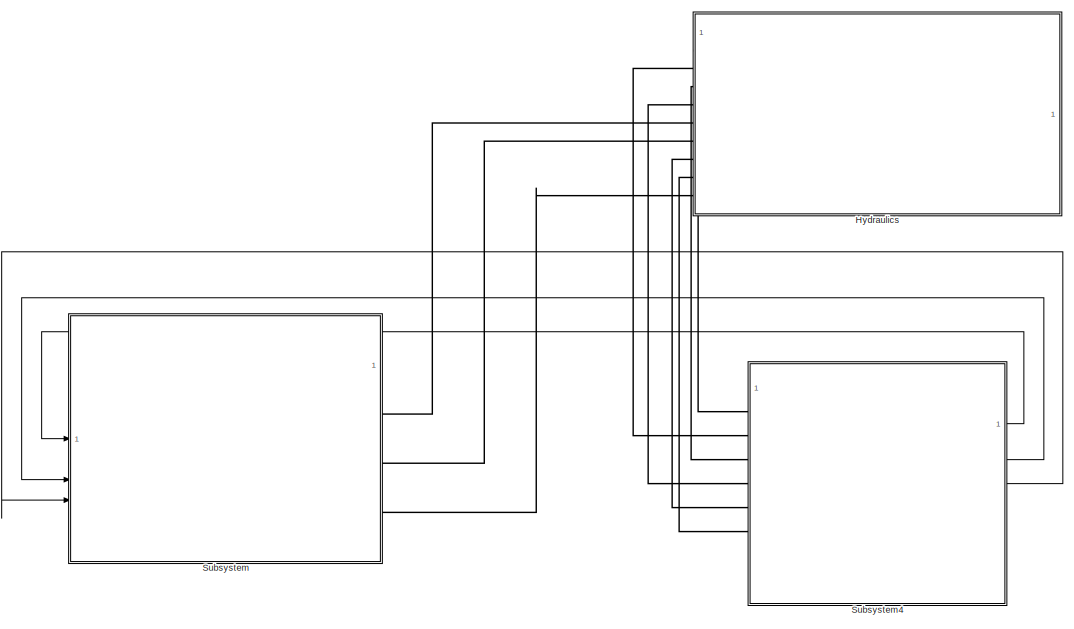
[diagram: root canvas - part 1/2, full width, top band]
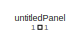
[diagram: root canvas - part 2/2, bottom right region]
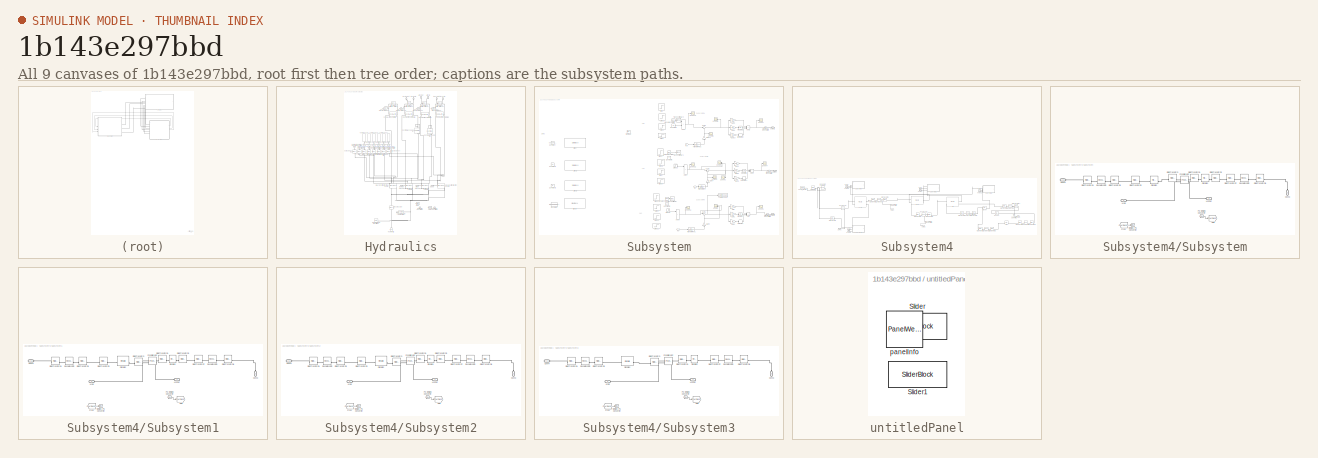
[diagram: thumbnail index - all 9 canvases of the model, root first then tree order]
MODEL slx_1b143e297bbd
KIND model
CONFIG AbsTol = auto
CONFIG EnableMultiTasking = off
CONFIG FixedStep = auto
CONFIG MaxStep = auto
CONFIG MinStep = auto
CONFIG RelTol = 1e-6
CONFIG SampleTimeConstraint = Unconstrained
CONFIG SolverName = ode23t
CONFIG StartTime = 0.0
CONFIG StopTime = 15
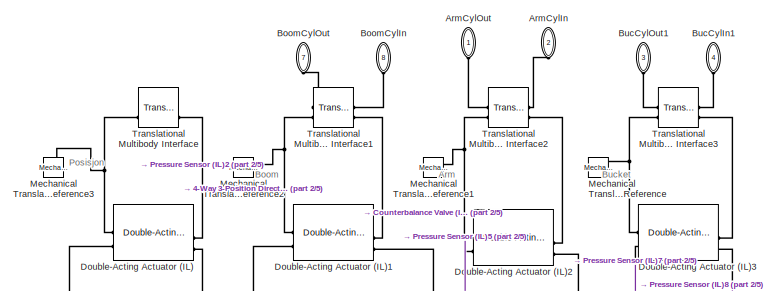
[diagram: Hydraulics - part 1/5, top center region]
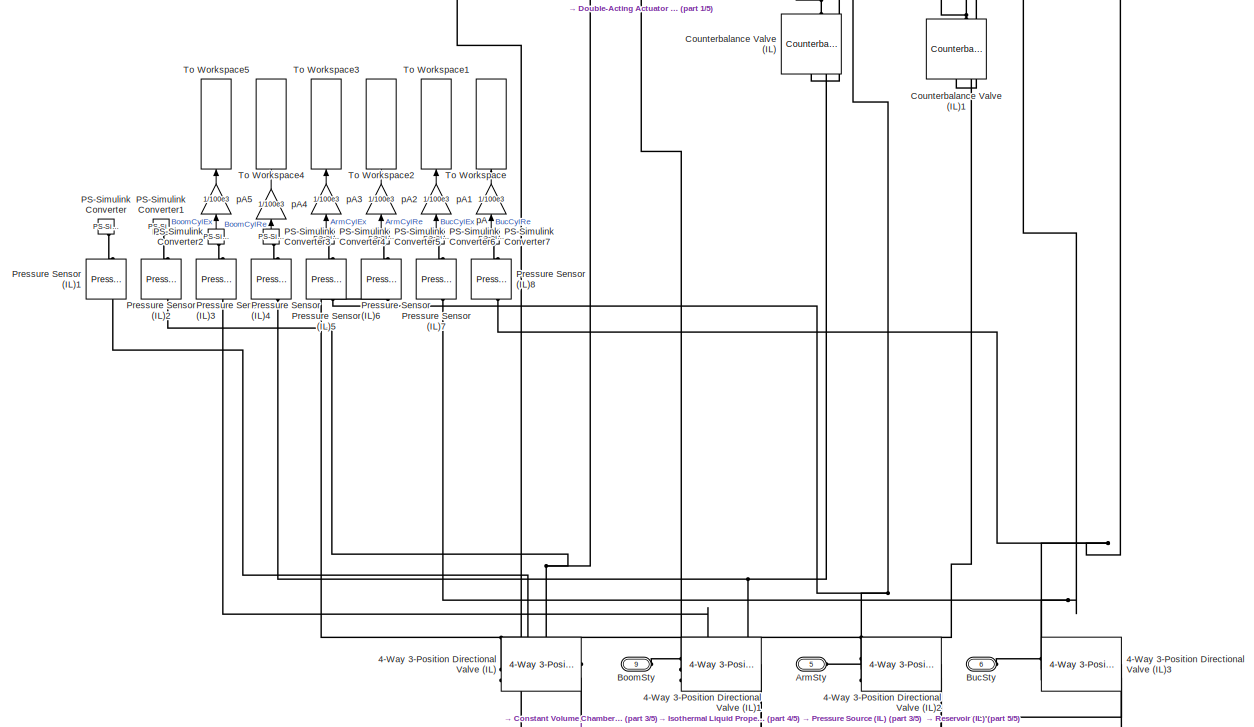
[diagram: Hydraulics - part 2/5, full width, middle band]
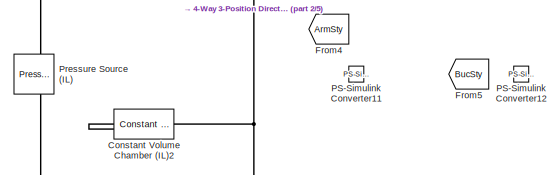
[diagram: Hydraulics - part 3/5, bottom center region]
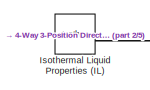
[diagram: Hydraulics - part 4/5, bottom left region]
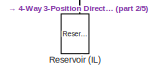
[diagram: Hydraulics - part 5/5, bottom center region]
BLOCK [SubSystem] Hydraulics
BLOCK [Reference] Hydraulics/4-Way 3-Position Directional Valve (IL)  REF=SimscapeFluids_lib/Isothermal Liquid/Valves & Orifices/Directional Control
Valves/4-Way 3-Position
Directional Valve
(IL)
  Commented = on
  SourceBlock = SimscapeFluids_lib/Isothermal Liquid/Valves & Orifices/Directional Control\nValves/4-Way 3-Position\nDirectional Valve\n(IL)
  SourceType = 4-Way 3-Position\nDirectional Valve\n(IL)
BLOCK [Reference] Hydraulics/4-Way 3-Position Directional Valve (IL)1  REF=SimscapeFluids_lib/Isothermal Liquid/Valves & Orifices/Directional Control
Valves/4-Way 3-Position
Directional Valve
(IL)
  SourceBlock = SimscapeFluids_lib/Isothermal Liquid/Valves & Orifices/Directional Control\nValves/4-Way 3-Position\nDirectional Valve\n(IL)
  SourceType = 4-Way 3-Position\nDirectional Valve\n(IL)
BLOCK [Reference] Hydraulics/4-Way 3-Position Directional Valve (IL)2  REF=SimscapeFluids_lib/Isothermal Liquid/Valves & Orifices/Directional Control
Valves/4-Way 3-Position
Directional Valve
(IL)
  SourceBlock = SimscapeFluids_lib/Isothermal Liquid/Valves & Orifices/Directional Control\nValves/4-Way 3-Position\nDirectional Valve\n(IL)
  SourceType = 4-Way 3-Position\nDirectional Valve\n(IL)
BLOCK [Reference] Hydraulics/4-Way 3-Position Directional Valve (IL)3  REF=SimscapeFluids_lib/Isothermal Liquid/Valves & Orifices/Directional Control
Valves/4-Way 3-Position
Directional Valve
(IL)
  SourceBlock = SimscapeFluids_lib/Isothermal Liquid/Valves & Orifices/Directional Control\nValves/4-Way 3-Position\nDirectional Valve\n(IL)
  SourceType = 4-Way 3-Position\nDirectional Valve\n(IL)
BLOCK [PMIOPort] Hydraulics/ArmCylIn
  NameLocation = left
  Port = 2
  Side = Left
BLOCK [PMIOPort] Hydraulics/ArmCylOut
  NameLocation = left
  Side = Left
BLOCK [PMIOPort] Hydraulics/ArmSty
  Port = 5
  Side = Left
BLOCK [PMIOPort] Hydraulics/BoomCylIn
  NameLocation = left
  Port = 8
  Side = Left
BLOCK [PMIOPort] Hydraulics/BoomCylOut
  NameLocation = left
  Port = 7
  Side = Left
BLOCK [PMIOPort] Hydraulics/BoomSty
  Port = 9
  Side = Left
BLOCK [PMIOPort] Hydraulics/BucCylIn1
  NameLocation = left
  Port = 4
  Side = Left
BLOCK [PMIOPort] Hydraulics/BucCylOut1
  NameLocation = left
  Port = 3
  Side = Left
BLOCK [PMIOPort] Hydraulics/BucSty
  Port = 6
  Side = Left
BLOCK [Reference] Hydraulics/Constant Volume Chamber (IL)2  REF=fl_lib/Isothermal Liquid/Elements/Constant Volume
Chamber (IL)
  SourceBlock = fl_lib/Isothermal Liquid/Elements/Constant Volume\nChamber (IL)
  SourceType = Constant Volume\nChamber (IL)
BLOCK [Reference] Hydraulics/Counterbalance Valve (IL)  REF=SimscapeFluids_lib/Isothermal Liquid/Valves & Orifices/Pressure Control
Valves/Counterbalance Valve
(IL)
  NameLocation = left
  SourceBlock = SimscapeFluids_lib/Isothermal Liquid/Valves & Orifices/Pressure Control\nValves/Counterbalance Valve\n(IL)
  SourceType = Counterbalance Valve\n(IL)
BLOCK [Reference] Hydraulics/Counterbalance Valve (IL)1  REF=SimscapeFluids_lib/Isothermal Liquid/Valves & Orifices/Pressure Control
Valves/Counterbalance Valve
(IL)
  NameLocation = left
  SourceBlock = SimscapeFluids_lib/Isothermal Liquid/Valves & Orifices/Pressure Control\nValves/Counterbalance Valve\n(IL)
  SourceType = Counterbalance Valve\n(IL)
BLOCK [Reference] Hydraulics/Double-Acting Actuator (IL)  REF=SimscapeFluids_lib/Isothermal Liquid/Actuators/Double-Acting
Actuator (IL)
  Commented = on
  SourceBlock = SimscapeFluids_lib/Isothermal Liquid/Actuators/Double-Acting\nActuator (IL)
  SourceType = Double-Acting\nActuator (IL)
BLOCK [Reference] Hydraulics/Double-Acting Actuator (IL)1  REF=SimscapeFluids_lib/Isothermal Liquid/Actuators/Double-Acting
Actuator (IL)
  SourceBlock = SimscapeFluids_lib/Isothermal Liquid/Actuators/Double-Acting\nActuator (IL)
  SourceType = Double-Acting\nActuator (IL)
BLOCK [Reference] Hydraulics/Double-Acting Actuator (IL)2  REF=SimscapeFluids_lib/Isothermal Liquid/Actuators/Double-Acting
Actuator (IL)
  SourceBlock = SimscapeFluids_lib/Isothermal Liquid/Actuators/Double-Acting\nActuator (IL)
  SourceType = Double-Acting\nActuator (IL)
BLOCK [Reference] Hydraulics/Double-Acting Actuator (IL)3  REF=SimscapeFluids_lib/Isothermal Liquid/Actuators/Double-Acting
Actuator (IL)
  SourceBlock = SimscapeFluids_lib/Isothermal Liquid/Actuators/Double-Acting\nActuator (IL)
  SourceType = Double-Acting\nActuator (IL)
BLOCK [From] Hydraulics/From4
  Commented = on
  GotoTag = ArmSty
  TagVisibility = global
BLOCK [From] Hydraulics/From5
  Commented = on
  GotoTag = BucSty
  TagVisibility = global
BLOCK [Reference] Hydraulics/Isothermal Liquid Properties (IL)  REF=fl_lib/Isothermal Liquid/Utilities/Isothermal Liquid
Properties (IL)
  SourceBlock = fl_lib/Isothermal Liquid/Utilities/Isothermal Liquid\nProperties (IL)
  SourceType = Isothermal Liquid\nProperties (IL)
BLOCK [Reference] Hydraulics/Mechanical Translational Reference  REF=fl_lib/Mechanical/Translational
Elements/Mechanical
Translational
Reference
  NameLocation = right
  SourceBlock = fl_lib/Mechanical/Translational\nElements/Mechanical\nTranslational\nReference
  SourceType = Mechanical\nTranslational\nReference
BLOCK [Reference] Hydraulics/Mechanical Translational Reference1  REF=fl_lib/Mechanical/Translational
Elements/Mechanical
Translational
Reference
  NameLocation = right
  SourceBlock = fl_lib/Mechanical/Translational\nElements/Mechanical\nTranslational\nReference
  SourceType = Mechanical\nTranslational\nReference
BLOCK [Reference] Hydraulics/Mechanical Translational Reference2  REF=fl_lib/Mechanical/Translational
Elements/Mechanical
Translational
Reference
  NameLocation = right
  SourceBlock = fl_lib/Mechanical/Translational\nElements/Mechanical\nTranslational\nReference
  SourceType = Mechanical\nTranslational\nReference
BLOCK [Reference] Hydraulics/Mechanical Translational Reference3  REF=fl_lib/Mechanical/Translational
Elements/Mechanical
Translational
Reference
  Commented = on
  NameLocation = right
  SourceBlock = fl_lib/Mechanical/Translational\nElements/Mechanical\nTranslational\nReference
  SourceType = Mechanical\nTranslational\nReference
BLOCK [Reference] Hydraulics/PS-Simulink Converter  REF=nesl_utility/PS-Simulink
Converter
  Commented = on
  NameLocation = right
  SourceBlock = nesl_utility/PS-Simulink\nConverter
  SourceType = PS-Simulink\nConverter
BLOCK [Reference] Hydraulics/PS-Simulink Converter1  REF=nesl_utility/PS-Simulink
Converter
  Commented = on
  NameLocation = right
  SourceBlock = nesl_utility/PS-Simulink\nConverter
  SourceType = PS-Simulink\nConverter
BLOCK [Reference] Hydraulics/PS-Simulink Converter11  REF=nesl_utility/PS-Simulink
Converter
  Commented = on
  SourceBlock = nesl_utility/PS-Simulink\nConverter
  SourceType = PS-Simulink\nConverter
BLOCK [Reference] Hydraulics/PS-Simulink Converter12  REF=nesl_utility/PS-Simulink
Converter
  Commented = on
  SourceBlock = nesl_utility/PS-Simulink\nConverter
  SourceType = PS-Simulink\nConverter
BLOCK [Reference] Hydraulics/PS-Simulink Converter2  REF=nesl_utility/PS-Simulink
Converter
  NameLocation = right
  SourceBlock = nesl_utility/PS-Simulink\nConverter
  SourceType = PS-Simulink\nConverter
BLOCK [Reference] Hydraulics/PS-Simulink Converter3  REF=nesl_utility/PS-Simulink
Converter
  NameLocation = right
  SourceBlock = nesl_utility/PS-Simulink\nConverter
  SourceType = PS-Simulink\nConverter
BLOCK [Reference] Hydraulics/PS-Simulink Converter4  REF=nesl_utility/PS-Simulink
Converter
  NameLocation = right
  SourceBlock = nesl_utility/PS-Simulink\nConverter
  SourceType = PS-Simulink\nConverter
BLOCK [Reference] Hydraulics/PS-Simulink Converter5  REF=nesl_utility/PS-Simulink
Converter
  NameLocation = right
  SourceBlock = nesl_utility/PS-Simulink\nConverter
  SourceType = PS-Simulink\nConverter
BLOCK [Reference] Hydraulics/PS-Simulink Converter6  REF=nesl_utility/PS-Simulink
Converter
  NameLocation = right
  SourceBlock = nesl_utility/PS-Simulink\nConverter
  SourceType = PS-Simulink\nConverter
BLOCK [Reference] Hydraulics/PS-Simulink Converter7  REF=nesl_utility/PS-Simulink
Converter
  NameLocation = right
  SourceBlock = nesl_utility/PS-Simulink\nConverter
  SourceType = PS-Simulink\nConverter
BLOCK [Reference] Hydraulics/Pressure Sensor (IL)1  REF=fl_lib/Isothermal Liquid/Sensors/Pressure Sensor (IL)
  Commented = on
  NameLocation = right
  SourceBlock = fl_lib/Isothermal Liquid/Sensors/Pressure Sensor (IL)
  SourceType = Pressure Sensor (IL)
BLOCK [Reference] Hydraulics/Pressure Sensor (IL)2  REF=fl_lib/Isothermal Liquid/Sensors/Pressure Sensor (IL)
  Commented = on
  NameLocation = right
  SourceBlock = fl_lib/Isothermal Liquid/Sensors/Pressure Sensor (IL)
  SourceType = Pressure Sensor (IL)
BLOCK [Reference] Hydraulics/Pressure Sensor (IL)3  REF=fl_lib/Isothermal Liquid/Sensors/Pressure Sensor (IL)
  NameLocation = right
  SourceBlock = fl_lib/Isothermal Liquid/Sensors/Pressure Sensor (IL)
  SourceType = Pressure Sensor (IL)
BLOCK [Reference] Hydraulics/Pressure Sensor (IL)4  REF=fl_lib/Isothermal Liquid/Sensors/Pressure Sensor (IL)
  NameLocation = right
  SourceBlock = fl_lib/Isothermal Liquid/Sensors/Pressure Sensor (IL)
  SourceType = Pressure Sensor (IL)
BLOCK [Reference] Hydraulics/Pressure Sensor (IL)5  REF=fl_lib/Isothermal Liquid/Sensors/Pressure Sensor (IL)
  NameLocation = right
  SourceBlock = fl_lib/Isothermal Liquid/Sensors/Pressure Sensor (IL)
  SourceType = Pressure Sensor (IL)
BLOCK [Reference] Hydraulics/Pressure Sensor (IL)6  REF=fl_lib/Isothermal Liquid/Sensors/Pressure Sensor (IL)
  NameLocation = right
  SourceBlock = fl_lib/Isothermal Liquid/Sensors/Pressure Sensor (IL)
  SourceType = Pressure Sensor (IL)
BLOCK [Reference] Hydraulics/Pressure Sensor (IL)7  REF=fl_lib/Isothermal Liquid/Sensors/Pressure Sensor (IL)
  NameLocation = right
  SourceBlock = fl_lib/Isothermal Liquid/Sensors/Pressure Sensor (IL)
  SourceType = Pressure Sensor (IL)
BLOCK [Reference] Hydraulics/Pressure Sensor (IL)8  REF=fl_lib/Isothermal Liquid/Sensors/Pressure Sensor (IL)
  NameLocation = right
  SourceBlock = fl_lib/Isothermal Liquid/Sensors/Pressure Sensor (IL)
  SourceType = Pressure Sensor (IL)
BLOCK [Reference] Hydraulics/Pressure Source (IL)  REF=fl_lib/Isothermal Liquid/Sources/Pressure Source (IL)
  NameLocation = right
  SourceBlock = fl_lib/Isothermal Liquid/Sources/Pressure Source (IL)
  SourceType = Pressure Source (IL)
BLOCK [Reference] Hydraulics/Reservoir (IL)  REF=fl_lib/Isothermal Liquid/Elements/Reservoir (IL)
  NameLocation = right
  SourceBlock = fl_lib/Isothermal Liquid/Elements/Reservoir (IL)
  SourceType = Reservoir (IL)
BLOCK [ToWorkspace] Hydraulics/To Workspace
  FixptAsFi = on
  MaxDataPoints = inf
  NameLocation = right
  SampleTime = -1
  SaveFormat = Structure With Time
  VariableName = BucCylRe
BLOCK [ToWorkspace] Hydraulics/To Workspace1
  FixptAsFi = on
  MaxDataPoints = inf
  NameLocation = right
  SampleTime = -1
  SaveFormat = Structure With Time
  VariableName = BucCylEx
BLOCK [ToWorkspace] Hydraulics/To Workspace2
  FixptAsFi = on
  MaxDataPoints = inf
  NameLocation = right
  SampleTime = -1
  SaveFormat = Structure With Time
  VariableName = ArmCylRe
BLOCK [ToWorkspace] Hydraulics/To Workspace3
  FixptAsFi = on
  MaxDataPoints = inf
  NameLocation = right
  SampleTime = -1
  SaveFormat = Structure With Time
  VariableName = ArmCylEx
BLOCK [ToWorkspace] Hydraulics/To Workspace4
  FixptAsFi = on
  MaxDataPoints = inf
  NameLocation = right
  SampleTime = -1
  SaveFormat = Structure With Time
  VariableName = BoomCylRe
BLOCK [ToWorkspace] Hydraulics/To Workspace5
  FixptAsFi = on
  MaxDataPoints = inf
  NameLocation = right
  SampleTime = -1
  SaveFormat = Structure With Time
  VariableName = BoomCylEx
BLOCK [Reference] Hydraulics/Translational Multibody Interface  REF=fl_lib/Mechanical/Multibody Interfaces/Translational
Multibody Interface
  Commented = on
  SourceBlock = fl_lib/Mechanical/Multibody Interfaces/Translational\nMultibody Interface
  SourceType = Translational\nMultibody Interface
BLOCK [Reference] Hydraulics/Translational Multibody Interface1  REF=fl_lib/Mechanical/Multibody Interfaces/Translational
Multibody Interface
  SourceBlock = fl_lib/Mechanical/Multibody Interfaces/Translational\nMultibody Interface
  SourceType = Translational\nMultibody Interface
BLOCK [Reference] Hydraulics/Translational Multibody Interface2  REF=fl_lib/Mechanical/Multibody Interfaces/Translational
Multibody Interface
  SourceBlock = fl_lib/Mechanical/Multibody Interfaces/Translational\nMultibody Interface
  SourceType = Translational\nMultibody Interface
BLOCK [Reference] Hydraulics/Translational Multibody Interface3  REF=fl_lib/Mechanical/Multibody Interfaces/Translational
Multibody Interface
  SourceBlock = fl_lib/Mechanical/Multibody Interfaces/Translational\nMultibody Interface
  SourceType = Translational\nMultibody Interface
BLOCK [Gain] Hydraulics/pA
  Gain = 1/100e3
  NameLocation = right
BLOCK [Gain] Hydraulics/pA1
  Gain = 1/100e3
  NameLocation = right
BLOCK [Gain] Hydraulics/pA2
  Gain = 1/100e3
  NameLocation = right
BLOCK [Gain] Hydraulics/pA3
  Gain = 1/100e3
  NameLocation = right
BLOCK [Gain] Hydraulics/pA4
  Gain = 1/100e3
  NameLocation = right
BLOCK [Gain] Hydraulics/pA5
  Gain = 1/100e3
  NameLocation = right
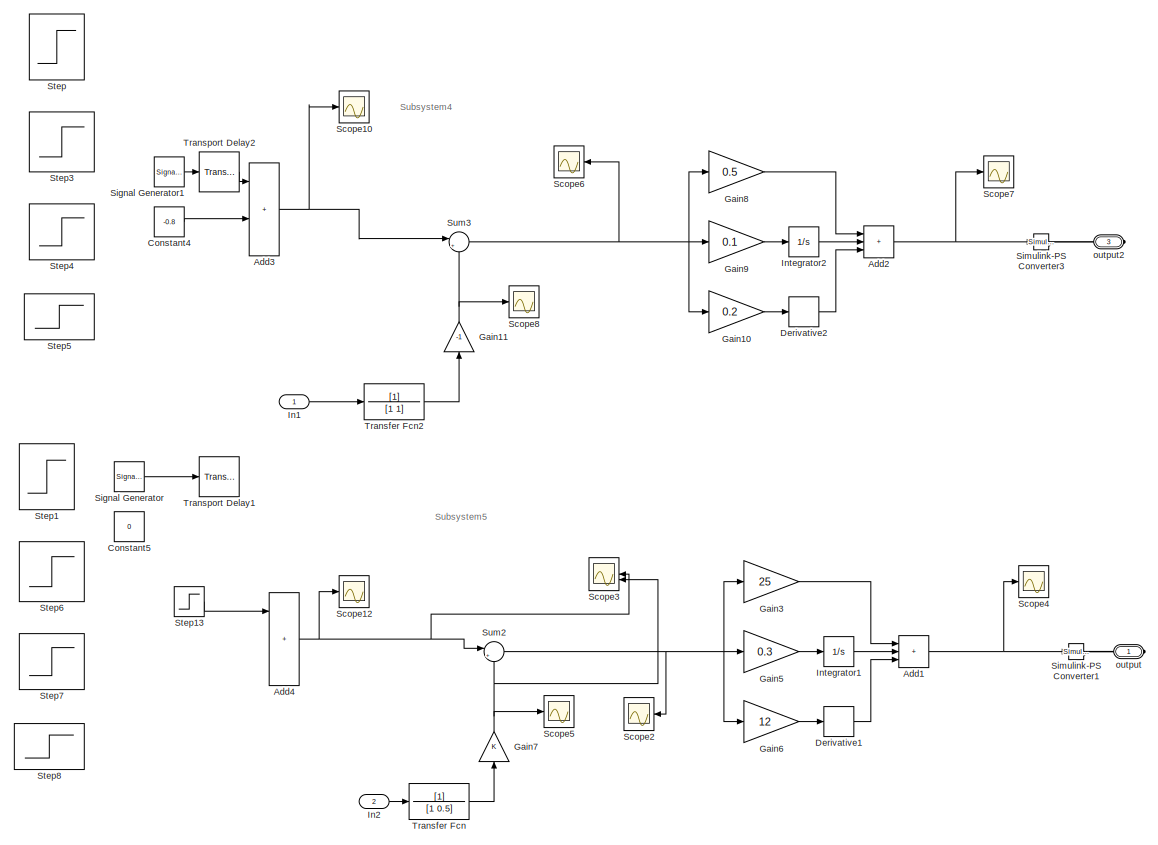
[diagram: Subsystem - part 1/3, middle right region]
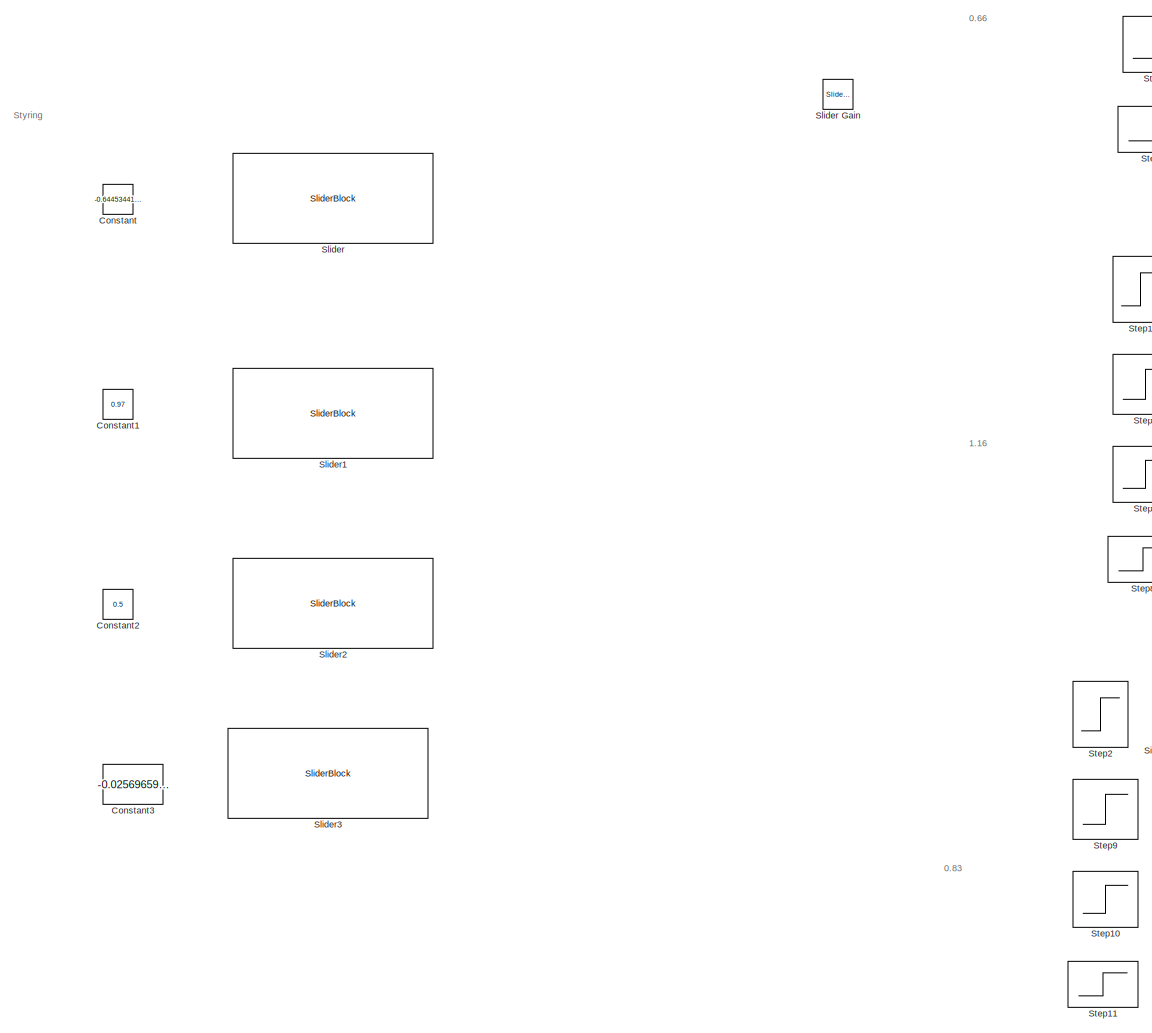
[diagram: Subsystem - part 2/3, left side, full height]
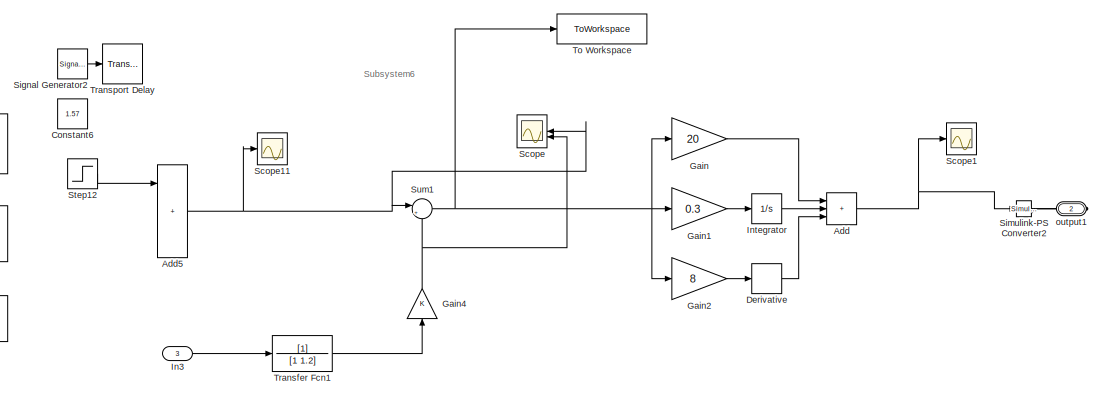
[diagram: Subsystem - part 3/3, bottom right region]
BLOCK [SubSystem] Subsystem
BLOCK [Sum] Subsystem/Add
  IconShape = rectangular
  Inputs = +++
BLOCK [Sum] Subsystem/Add1
  IconShape = rectangular
  Inputs = +++
BLOCK [Sum] Subsystem/Add2
  Commented = on
  IconShape = rectangular
  Inputs = +++
BLOCK [Sum] Subsystem/Add3
  Commented = on
  IconShape = rectangular
  Inputs = ++++
BLOCK [Sum] Subsystem/Add4
  IconShape = rectangular
  Inputs = ++++
BLOCK [Sum] Subsystem/Add5
  IconShape = rectangular
  Inputs = ++++
BLOCK [Constant] Subsystem/Constant
  Commented = on
  Value = -0.6445344129554657
BLOCK [Constant] Subsystem/Constant1
  Commented = on
  Value = 0.97
BLOCK [Constant] Subsystem/Constant2
  Commented = on
  Value = 0.5
BLOCK [Constant] Subsystem/Constant3
  Commented = on
  Value = -0.02569659442724458
BLOCK [Constant] Subsystem/Constant4
  Commented = on
  Value = -0.8
BLOCK [Constant] Subsystem/Constant5
  Value = 0
BLOCK [Constant] Subsystem/Constant6
  Value = 1.57
BLOCK [Derivative] Subsystem/Derivative
BLOCK [Derivative] Subsystem/Derivative1
BLOCK [Derivative] Subsystem/Derivative2
  Commented = on
BLOCK [Gain] Subsystem/Gain
  Gain = 20
BLOCK [Gain] Subsystem/Gain1
  Gain = 0.3
BLOCK [Gain] Subsystem/Gain10
  Commented = on
  Gain = 0.2
BLOCK [Gain] Subsystem/Gain11
  Commented = on
  Gain = -1
  NameLocation = right
BLOCK [Gain] Subsystem/Gain2
  Gain = 8
BLOCK [Gain] Subsystem/Gain3
  Gain = 25
BLOCK [Gain] Subsystem/Gain4
  NameLocation = right
BLOCK [Gain] Subsystem/Gain5
  Gain = 0.3
BLOCK [Gain] Subsystem/Gain6
  Gain = 12
BLOCK [Gain] Subsystem/Gain7
  NameLocation = right
BLOCK [Gain] Subsystem/Gain8
  Commented = on
  Gain = 0.5
BLOCK [Gain] Subsystem/Gain9
  Commented = on
  Gain = 0.1
BLOCK [Inport] Subsystem/In1
BLOCK [Inport] Subsystem/In2
  Port = 2
BLOCK [Inport] Subsystem/In3
  Port = 3
BLOCK [Integrator] Subsystem/Integrator
BLOCK [Integrator] Subsystem/Integrator1
BLOCK [Integrator] Subsystem/Integrator2
  Commented = on
BLOCK [Scope] Subsystem/Scope
  Floating = off
  NameLocation = top
  NumInputPorts = 2
  ScopeSpecificationString = Simulink.scopes.TimeScopeBlockCfg('CurrentConfiguration', extmgr.ConfigurationSet(extmgr.Configuration('Core','General UI',true),extmgr.Configuration('Core','Source UI',true),extmgr.Configuration('Sources','WiredSimulink',true),extmgr.Configuration('Visuals','Time Domain',true,'SerializedDisplays',{struct('MinYLimReal','-0.22023','MaxYLimReal','1.98203','YLabelReal','','MinYLimMag','0.00000','MaxY...<+1478ch>
BLOCK [Scope] Subsystem/Scope1
  Floating = off
  NumInputPorts = 1
  ScopeSpecificationString = Simulink.scopes.TimeScopeBlockCfg('CurrentConfiguration', extmgr.ConfigurationSet(extmgr.Configuration('Core','General UI',true),extmgr.Configuration('Core','Source UI',true),extmgr.Configuration('Sources','WiredSimulink',true,'DataLoggingVariableName','ScopeData1'),extmgr.Configuration('Visuals','Time Domain',true,'SerializedDisplays',{struct('MinYLimReal','-26388279066628.39844','MaxYLimReal','2...<+1621ch>
BLOCK [Scope] Subsystem/Scope10
  Commented = on
  Floating = off
  NumInputPorts = 1
  ScopeSpecificationString = Simulink.scopes.TimeScopeBlockCfg('CurrentConfiguration', extmgr.ConfigurationSet(extmgr.Configuration('Core','General UI',true),extmgr.Configuration('Core','Source UI',true),extmgr.Configuration('Sources','WiredSimulink',true,'DataLoggingVariableName','ScopeData4'),extmgr.Configuration('Visuals','Time Domain',true,'SerializedDisplays',{struct('MinYLimReal','-0.9','MaxYLimReal','-0.7','YLabelReal'...<+1485ch>
BLOCK [Scope] Subsystem/Scope11
  Floating = off
  NumInputPorts = 1
  ScopeSpecificationString = Simulink.scopes.TimeScopeBlockCfg('CurrentConfiguration', extmgr.ConfigurationSet(extmgr.Configuration('Core','General UI',true),extmgr.Configuration('Core','Source UI',true),extmgr.Configuration('Sources','WiredSimulink',true,'DataLoggingVariableName','ScopeData5'),extmgr.Configuration('Visuals','Time Domain',true,'SerializedDisplays',{struct('MinYLimReal','0.58875','MaxYLimReal','2.55125','YLabe...<+1481ch>
BLOCK [Scope] Subsystem/Scope12
  Floating = off
  NumInputPorts = 1
  ScopeSpecificationString = Simulink.scopes.TimeScopeBlockCfg('CurrentConfiguration', extmgr.ConfigurationSet(extmgr.Configuration('Core','General UI',true),extmgr.Configuration('Core','Source UI',true),extmgr.Configuration('Sources','WiredSimulink',true,'DataLoggingVariableName','ScopeData6'),extmgr.Configuration('Visuals','Time Domain',true,'SerializedDisplays',{struct('MinYLimReal','-0.0625','MaxYLimReal','0.5625','YLabel...<+1475ch>
BLOCK [Scope] Subsystem/Scope2
  Floating = off
  NameLocation = top
  NumInputPorts = 2
  ScopeSpecificationString = Simulink.scopes.TimeScopeBlockCfg('CurrentConfiguration', extmgr.ConfigurationSet(extmgr.Configuration('Core','General UI',true),extmgr.Configuration('Core','Source UI',true),extmgr.Configuration('Sources','WiredSimulink',true,'DataLoggingVariableName','ScopeData1'),extmgr.Configuration('Visuals','Time Domain',true,'SerializedDisplays',{struct('MinYLimReal','-0.10009','MaxYLimReal','0.09881','YLab...<+1495ch>
BLOCK [Scope] Subsystem/Scope3
  Floating = off
  NameLocation = top
  NumInputPorts = 2
  ScopeSpecificationString = Simulink.scopes.TimeScopeBlockCfg('CurrentConfiguration', extmgr.ConfigurationSet(extmgr.Configuration('Core','General UI',true),extmgr.Configuration('Core','Source UI',true),extmgr.Configuration('Sources','WiredSimulink',true),extmgr.Configuration('Visuals','Time Domain',true,'SerializedDisplays',{struct('MinYLimReal','-0.06322','MaxYLimReal','0.56873','YLabelReal','','MinYLimMag','0.00000','MaxY...<+1476ch>
BLOCK [Scope] Subsystem/Scope4
  Floating = off
  NumInputPorts = 1
  ScopeSpecificationString = Simulink.scopes.TimeScopeBlockCfg('CurrentConfiguration', extmgr.ConfigurationSet(extmgr.Configuration('Core','General UI',true),extmgr.Configuration('Core','Source UI',true),extmgr.Configuration('Sources','WiredSimulink',true,'DataLoggingVariableName','ScopeData1'),extmgr.Configuration('Visuals','Time Domain',true,'SerializedDisplays',{struct('MinYLimReal','-0.54575','MaxYLimReal','0.52146','YLab...<+1517ch>
BLOCK [Scope] Subsystem/Scope5
  Floating = off
  NumInputPorts = 1
  ScopeSpecificationString = Simulink.scopes.TimeScopeBlockCfg('CurrentConfiguration', extmgr.ConfigurationSet(extmgr.Configuration('Core','General UI',true),extmgr.Configuration('Core','Source UI',true),extmgr.Configuration('Sources','WiredSimulink',true,'DataLoggingVariableName','ScopeData2'),extmgr.Configuration('Visuals','Time Domain',true,'SerializedDisplays',{struct('MinYLimReal','-0.06322','MaxYLimReal','0.56873','YLab...<+1482ch>
BLOCK [Scope] Subsystem/Scope6
  Commented = on
  Floating = off
  NameLocation = top
  NumInputPorts = 1
  ScopeSpecificationString = Simulink.scopes.TimeScopeBlockCfg('CurrentConfiguration', extmgr.ConfigurationSet(extmgr.Configuration('Core','General UI',true),extmgr.Configuration('Core','Source UI',true),extmgr.Configuration('Sources','WiredSimulink',true),extmgr.Configuration('Visuals','Time Domain',true,'SerializedDisplays',{struct('MinYLimReal','-1.00965','MaxYLimReal','-0.77671','YLabelReal','','MinYLimMag','0.00000','Max...<+1472ch>
BLOCK [Scope] Subsystem/Scope7
  Commented = on
  Floating = off
  NumInputPorts = 1
  ScopeSpecificationString = Simulink.scopes.TimeScopeBlockCfg('CurrentConfiguration', extmgr.ConfigurationSet(extmgr.Configuration('Core','General UI',true),extmgr.Configuration('Core','Source UI',true),extmgr.Configuration('Sources','WiredSimulink',true,'DataLoggingVariableName','ScopeData1'),extmgr.Configuration('Visuals','Time Domain',true,'SerializedDisplays',{struct('MinYLimReal','-0.62582','MaxYLimReal','-0.37491','YLa...<+1544ch>
BLOCK [Scope] Subsystem/Scope8
  Commented = on
  Floating = off
  NumInputPorts = 1
  ScopeSpecificationString = Simulink.scopes.TimeScopeBlockCfg('CurrentConfiguration', extmgr.ConfigurationSet(extmgr.Configuration('Core','General UI',true),extmgr.Configuration('Core','Source UI',true),extmgr.Configuration('Sources','WiredSimulink',true,'DataLoggingVariableName','ScopeData2'),extmgr.Configuration('Visuals','Time Domain',true,'SerializedDisplays',{struct('MinYLimReal','-0.02332','MaxYLimReal','0.20988','YLab...<+1483ch>
BLOCK [SignalGenerator] Subsystem/Signal Generator
  Amplitude = 0.15
  Units = rad/sec
BLOCK [SignalGenerator] Subsystem/Signal Generator1
  Amplitude = 0.4
  Commented = on
  Frequency = 3
  Units = rad/sec
BLOCK [SignalGenerator] Subsystem/Signal Generator2
  Amplitude = 0.785
  Units = rad/sec
BLOCK [Reference] Subsystem/Simulink-PS Converter1  REF=nesl_utility/Simulink-PS
Converter
  SourceBlock = nesl_utility/Simulink-PS\nConverter
  SourceType = Simulink-PS\nConverter
BLOCK [Reference] Subsystem/Simulink-PS Converter2  REF=nesl_utility/Simulink-PS
Converter
  SourceBlock = nesl_utility/Simulink-PS\nConverter
  SourceType = Simulink-PS\nConverter
BLOCK [Reference] Subsystem/Simulink-PS Converter3  REF=nesl_utility/Simulink-PS
Converter
  Commented = on
  SourceBlock = nesl_utility/Simulink-PS\nConverter
  SourceType = Simulink-PS\nConverter
BLOCK [SliderBlock] Subsystem/Slider
  Commented = on
  ScaleMax = 0.8
  ScaleMin = -0.8
BLOCK [Reference] Subsystem/Slider Gain  REF=simulink/Math
Operations/Slider
Gain
  SourceBlock = simulink/Math\nOperations/Slider\nGain
  SourceType = Slider Gain
BLOCK [SliderBlock] Subsystem/Slider1
  Commented = on
  ScaleMax = 0.1
  ScaleMin = -0.1
BLOCK [SliderBlock] Subsystem/Slider2
  Commented = on
  ScaleMax = 0.1
  ScaleMin = -0.1
BLOCK [SliderBlock] Subsystem/Slider3
  Commented = on
  ScaleMax = 0.1
  ScaleMin = -0.1
BLOCK [Step] Subsystem/Step
  After = 0.97
  SampleTime = 0
BLOCK [Step] Subsystem/Step1
  After = 0.74
  SampleTime = 0
BLOCK [Step] Subsystem/Step10
  After = 0.74
  SampleTime = 0
  Time = 7
BLOCK [Step] Subsystem/Step11
  After = 0.51
  SampleTime = 0
  Time = 10
BLOCK [Step] Subsystem/Step12
  After = 1.75
  Before = 1
  SampleTime = 0
  Time = 3
BLOCK [Step] Subsystem/Step13
  After = 0.5
  SampleTime = 0
  Time = 3
BLOCK [Step] Subsystem/Step2
  After = 1.57
  SampleTime = 0
BLOCK [Step] Subsystem/Step3
  After = 0.32
  SampleTime = 0
  Time = 4
BLOCK [Step] Subsystem/Step4
  After = 0.01
  SampleTime = 0
  Time = 7
BLOCK [Step] Subsystem/Step5
  After = -0.41
  SampleTime = 0
  Time = 10
BLOCK [Step] Subsystem/Step6
  After = -0.1
  SampleTime = 0
  Time = 4
BLOCK [Step] Subsystem/Step7
  After = -0.25
  SampleTime = 0
  Time = 7
BLOCK [Step] Subsystem/Step8
  After = -0.07
  SampleTime = 0
  Time = 10
BLOCK [Step] Subsystem/Step9
  After = 0
  SampleTime = 0
  Time = 4
BLOCK [Sum] Subsystem/Sum1
  Inputs = |+-
BLOCK [Sum] Subsystem/Sum2
  Inputs = |+-
BLOCK [Sum] Subsystem/Sum3
  Commented = on
  Inputs = |+-
BLOCK [ToWorkspace] Subsystem/To Workspace
  Commented = on
  FixptAsFi = on
  MaxDataPoints = inf
  SampleTime = -1
  SaveFormat = Structure With Time
  VariableName = avvik
BLOCK [TransferFcn] Subsystem/Transfer Fcn
  Denominator = [1 0.5]
BLOCK [TransferFcn] Subsystem/Transfer Fcn1
  Denominator = [1 1.2]
BLOCK [TransferFcn] Subsystem/Transfer Fcn2
  Commented = on
  Denominator = [1 1]
BLOCK [TransportDelay] Subsystem/Transport Delay
BLOCK [TransportDelay] Subsystem/Transport Delay1
  DelayTime = 0.3
BLOCK [TransportDelay] Subsystem/Transport Delay2
  Commented = on
BLOCK [PMIOPort] Subsystem/output
  Side = Right
BLOCK [PMIOPort] Subsystem/output1
  Port = 2
  Side = Right
BLOCK [PMIOPort] Subsystem/output2
  Port = 3
  Side = Right
BLOCK [SubSystem] Subsystem4
BLOCK [Reference] Subsystem4/Arm  REF=sm_lib/Body Elements/File Solid
  SourceBlock = sm_lib/Body Elements/File Solid
  SourceType = File Solid
BLOCK [Reference] Subsystem4/Boom  REF=sm_lib/Body Elements/File Solid
  SourceBlock = sm_lib/Body Elements/File Solid
  SourceType = File Solid
BLOCK [Reference] Subsystem4/Bracket  REF=sm_lib/Body Elements/File Solid
  SourceBlock = sm_lib/Body Elements/File Solid
  SourceType = File Solid
BLOCK [Reference] Subsystem4/Buckket  REF=sm_lib/Body Elements/File Solid
  SourceBlock = sm_lib/Body Elements/File Solid
  SourceType = File Solid
BLOCK [PMIOPort] Subsystem4/Conn7
  Port = 7
  Side = Right
BLOCK [PMIOPort] Subsystem4/Conn8
  Port = 8
  Side = Right
BLOCK [Reference] Subsystem4/Feste  REF=sm_lib/Body Elements/File Solid
  SourceBlock = sm_lib/Body Elements/File Solid
  SourceType = File Solid
BLOCK [PMIOPort] Subsystem4/HydIn
  NameLocation = top
  Side = Left
BLOCK [PMIOPort] Subsystem4/HydIn1
  NameLocation = top
  Port = 3
  Side = Left
BLOCK [PMIOPort] Subsystem4/HydIn2
  NameLocation = top
  Port = 5
  Side = Left
BLOCK [PMIOPort] Subsystem4/HydIn3
  Port = 9
  Side = Left
BLOCK [PMIOPort] Subsystem4/HydOut
  NameLocation = top
  Port = 2
  Side = Left
BLOCK [PMIOPort] Subsystem4/HydOut1
  NameLocation = top
  Port = 4
  Side = Left
BLOCK [PMIOPort] Subsystem4/HydOut2
  NameLocation = top
  Port = 6
  Side = Left
BLOCK [PMIOPort] Subsystem4/HydOut3
  Port = 10
  Side = Left
BLOCK [Reference] Subsystem4/Mechanism Configuration  REF=sm_lib/Utilities/Mechanism
Configuration
  SourceBlock = sm_lib/Utilities/Mechanism\nConfiguration
  SourceType = Mechanism\nConfiguration
BLOCK [Reference] Subsystem4/PS-Simulink Converter  REF=nesl_utility/PS-Simulink
Converter
  NameLocation = left
  SourceBlock = nesl_utility/PS-Simulink\nConverter
  SourceType = PS-Simulink\nConverter
BLOCK [Reference] Subsystem4/PS-Simulink Converter1  REF=nesl_utility/PS-Simulink
Converter
  NameLocation = left
  SourceBlock = nesl_utility/PS-Simulink\nConverter
  SourceType = PS-Simulink\nConverter
BLOCK [Reference] Subsystem4/PS-Simulink Converter2  REF=nesl_utility/PS-Simulink
Converter
  NameLocation = left
  SourceBlock = nesl_utility/PS-Simulink\nConverter
  SourceType = PS-Simulink\nConverter
BLOCK [Reference] Subsystem4/Revolute Joint  REF=sm_lib/Joints/Revolute Joint
  SourceBlock = sm_lib/Joints/Revolute Joint
  SourceType = Revolute Joint
BLOCK [Reference] Subsystem4/Revolute Joint1  REF=sm_lib/Joints/Revolute Joint
  SourceBlock = sm_lib/Joints/Revolute Joint
  SourceType = Revolute Joint
BLOCK [Reference] Subsystem4/Revolute Joint2  REF=sm_lib/Joints/Revolute Joint
  SourceBlock = sm_lib/Joints/Revolute Joint
  SourceType = Revolute Joint
BLOCK [Reference] Subsystem4/Revolute Joint3  REF=sm_lib/Joints/Revolute Joint
  SourceBlock = sm_lib/Joints/Revolute Joint
  SourceType = Revolute Joint
BLOCK [Reference] Subsystem4/Revolute Joint4  REF=sm_lib/Joints/Revolute Joint
  SourceBlock = sm_lib/Joints/Revolute Joint
  SourceType = Revolute Joint
BLOCK [Reference] Subsystem4/Revolute Joint5  REF=sm_lib/Joints/Revolute Joint
  SourceBlock = sm_lib/Joints/Revolute Joint
  SourceType = Revolute Joint
BLOCK [Reference] Subsystem4/Revolute Joint6  REF=sm_lib/Joints/Revolute Joint
  SourceBlock = sm_lib/Joints/Revolute Joint
  SourceType = Revolute Joint
BLOCK [Reference] Subsystem4/Rigid Transform  REF=sm_lib/Frames and
Transforms/Rigid
Transform
  Commented = on
  SourceBlock = sm_lib/Frames and\nTransforms/Rigid\nTransform
  SourceType = Rigid\nTransform
BLOCK [Reference] Subsystem4/Rigid Transform10  REF=sm_lib/Frames and
Transforms/Rigid
Transform
  SourceBlock = sm_lib/Frames and\nTransforms/Rigid\nTransform
  SourceType = Rigid\nTransform
BLOCK [Reference] Subsystem4/Rigid Transform11  REF=sm_lib/Frames and
Transforms/Rigid
Transform
  SourceBlock = sm_lib/Frames and\nTransforms/Rigid\nTransform
  SourceType = Rigid\nTransform
BLOCK [Reference] Subsystem4/Rigid Transform12  REF=sm_lib/Frames and
Transforms/Rigid
Transform
  SourceBlock = sm_lib/Frames and\nTransforms/Rigid\nTransform
  SourceType = Rigid\nTransform
BLOCK [Reference] Subsystem4/Rigid Transform13  REF=sm_lib/Frames and
Transforms/Rigid
Transform
  SourceBlock = sm_lib/Frames and\nTransforms/Rigid\nTransform
  SourceType = Rigid\nTransform
BLOCK [Reference] Subsystem4/Rigid Transform2  REF=sm_lib/Frames and
Transforms/Rigid
Transform
  SourceBlock = sm_lib/Frames and\nTransforms/Rigid\nTransform
  SourceType = Rigid\nTransform
BLOCK [Reference] Subsystem4/Rigid Transform3  REF=sm_lib/Frames and
Transforms/Rigid
Transform
  SourceBlock = sm_lib/Frames and\nTransforms/Rigid\nTransform
  SourceType = Rigid\nTransform
BLOCK [Reference] Subsystem4/Rigid Transform4  REF=sm_lib/Frames and
Transforms/Rigid
Transform
  SourceBlock = sm_lib/Frames and\nTransforms/Rigid\nTransform
  SourceType = Rigid\nTransform
BLOCK [Reference] Subsystem4/Rigid Transform5  REF=sm_lib/Frames and
Transforms/Rigid
Transform
  SourceBlock = sm_lib/Frames and\nTransforms/Rigid\nTransform
  SourceType = Rigid\nTransform
BLOCK [Reference] Subsystem4/Rigid Transform6  REF=sm_lib/Frames and
Transforms/Rigid
Transform
  SourceBlock = sm_lib/Frames and\nTransforms/Rigid\nTransform
  SourceType = Rigid\nTransform
BLOCK [Reference] Subsystem4/Rigid Transform7  REF=sm_lib/Frames and
Transforms/Rigid
Transform
  SourceBlock = sm_lib/Frames and\nTransforms/Rigid\nTransform
  SourceType = Rigid\nTransform
BLOCK [Reference] Subsystem4/Rigid Transform8  REF=sm_lib/Frames and
Transforms/Rigid
Transform
  SourceBlock = sm_lib/Frames and\nTransforms/Rigid\nTransform
  SourceType = Rigid\nTransform
BLOCK [Reference] Subsystem4/Rigid Transform9  REF=sm_lib/Frames and
Transforms/Rigid
Transform
  SourceBlock = sm_lib/Frames and\nTransforms/Rigid\nTransform
  SourceType = Rigid\nTransform
BLOCK [Reference] Subsystem4/Solver Configuration  REF=nesl_utility/Solver
Configuration
  SourceBlock = nesl_utility/Solver\nConfiguration
  SourceType = Solver\nConfiguration
BLOCK [Reference] Subsystem4/Stick  REF=sm_lib/Body Elements/File Solid
  SourceBlock = sm_lib/Body Elements/File Solid
  SourceType = File Solid
BLOCK [SubSystem] Subsystem4/Subsystem
BLOCK [PMIOPort] Subsystem4/Subsystem/Conn3
  NameLocation = left
  Port = 2
  Side = Left
BLOCK [PMIOPort] Subsystem4/Subsystem/Conn4
  NameLocation = top
  Side = Left
BLOCK [Reference] Subsystem4/Subsystem/File Solid2  REF=sm_lib/Body Elements/File Solid
  SourceBlock = sm_lib/Body Elements/File Solid
  SourceType = File Solid
BLOCK [Reference] Subsystem4/Subsystem/File Solid3  REF=sm_lib/Body Elements/File Solid
  SourceBlock = sm_lib/Body Elements/File Solid
  SourceType = File Solid
BLOCK [From] Subsystem4/Subsystem/From
  Commented = on
  GotoTag = CylArmHydOut
  TagVisibility = global
BLOCK [Goto] Subsystem4/Subsystem/Goto
  Commented = on
  GotoTag = CylArmHydIn
  TagVisibility = global
BLOCK [PMIOPort] Subsystem4/Subsystem/HydIn
  Port = 3
  Side = Left
BLOCK [PMIOPort] Subsystem4/Subsystem/HydOut
  NameLocation = top
  Port = 4
  Side = Left
BLOCK [Reference] Subsystem4/Subsystem/PS-Simulink Converter  REF=nesl_utility/PS-Simulink
Converter
  Commented = on
  SourceBlock = nesl_utility/PS-Simulink\nConverter
  SourceType = PS-Simulink\nConverter
BLOCK [Reference] Subsystem4/Subsystem/Prismatic Joint  REF=sm_lib/Joints/Prismatic
Joint
  SourceBlock = sm_lib/Joints/Prismatic\nJoint
  SourceType = Prismatic\nJoint
BLOCK [Reference] Subsystem4/Subsystem/Revolute Joint2  REF=sm_lib/Joints/Revolute Joint
  SourceBlock = sm_lib/Joints/Revolute Joint
  SourceType = Revolute Joint
BLOCK [Reference] Subsystem4/Subsystem/Revolute Joint3  REF=sm_lib/Joints/Revolute Joint
  SourceBlock = sm_lib/Joints/Revolute Joint
  SourceType = Revolute Joint
BLOCK [Reference] Subsystem4/Subsystem/Rigid Transform  REF=sm_lib/Frames and
Transforms/Rigid
Transform
  SourceBlock = sm_lib/Frames and\nTransforms/Rigid\nTransform
  SourceType = Rigid\nTransform
BLOCK [Reference] Subsystem4/Subsystem/Rigid Transform1  REF=sm_lib/Frames and
Transforms/Rigid
Transform
  SourceBlock = sm_lib/Frames and\nTransforms/Rigid\nTransform
  SourceType = Rigid\nTransform
BLOCK [Reference] Subsystem4/Subsystem/Rigid Transform2  REF=sm_lib/Frames and
Transforms/Rigid
Transform
  SourceBlock = sm_lib/Frames and\nTransforms/Rigid\nTransform
  SourceType = Rigid\nTransform
BLOCK [Reference] Subsystem4/Subsystem/Rigid Transform3  REF=sm_lib/Frames and
Transforms/Rigid
Transform
  SourceBlock = sm_lib/Frames and\nTransforms/Rigid\nTransform
  SourceType = Rigid\nTransform
BLOCK [Reference] Subsystem4/Subsystem/Rigid Transform4  REF=sm_lib/Frames and
Transforms/Rigid
Transform
  SourceBlock = sm_lib/Frames and\nTransforms/Rigid\nTransform
  SourceType = Rigid\nTransform
BLOCK [Reference] Subsystem4/Subsystem/Rigid Transform5  REF=sm_lib/Frames and
Transforms/Rigid
Transform
  SourceBlock = sm_lib/Frames and\nTransforms/Rigid\nTransform
  SourceType = Rigid\nTransform
BLOCK [Reference] Subsystem4/Subsystem/Rigid Transform7  REF=sm_lib/Frames and
Transforms/Rigid
Transform
  SourceBlock = sm_lib/Frames and\nTransforms/Rigid\nTransform
  SourceType = Rigid\nTransform
BLOCK [Reference] Subsystem4/Subsystem/Rigid Transform8  REF=sm_lib/Frames and
Transforms/Rigid
Transform
  SourceBlock = sm_lib/Frames and\nTransforms/Rigid\nTransform
  SourceType = Rigid\nTransform
BLOCK [Reference] Subsystem4/Subsystem/Simulink-PS Converter  REF=nesl_utility/Simulink-PS
Converter
  Commented = on
  SourceBlock = nesl_utility/Simulink-PS\nConverter
  SourceType = Simulink-PS\nConverter
BLOCK [SubSystem] Subsystem4/Subsystem1
BLOCK [PMIOPort] Subsystem4/Subsystem1/Conn3
  NameLocation = left
  Port = 2
  Side = Left
BLOCK [PMIOPort] Subsystem4/Subsystem1/Conn4
  NameLocation = top
  Side = Left
BLOCK [Reference] Subsystem4/Subsystem1/File Solid2  REF=sm_lib/Body Elements/File Solid
  SourceBlock = sm_lib/Body Elements/File Solid
  SourceType = File Solid
BLOCK [Reference] Subsystem4/Subsystem1/File Solid3  REF=sm_lib/Body Elements/File Solid
  SourceBlock = sm_lib/Body Elements/File Solid
  SourceType = File Solid
BLOCK [From] Subsystem4/Subsystem1/From
  Commented = on
  GotoTag = CylArmHydOut
  TagVisibility = global
BLOCK [Goto] Subsystem4/Subsystem1/Goto
  Commented = on
  GotoTag = CylArmHydIn
  TagVisibility = global
BLOCK [PMIOPort] Subsystem4/Subsystem1/HydIn
  Port = 3
  Side = Left
BLOCK [PMIOPort] Subsystem4/Subsystem1/HydOut
  NameLocation = top
  Port = 4
  Side = Left
BLOCK [Reference] Subsystem4/Subsystem1/PS-Simulink Converter  REF=nesl_utility/PS-Simulink
Converter
  Commented = on
  SourceBlock = nesl_utility/PS-Simulink\nConverter
  SourceType = PS-Simulink\nConverter
BLOCK [Reference] Subsystem4/Subsystem1/Prismatic Joint  REF=sm_lib/Joints/Prismatic
Joint
  SourceBlock = sm_lib/Joints/Prismatic\nJoint
  SourceType = Prismatic\nJoint
BLOCK [Reference] Subsystem4/Subsystem1/Revolute Joint2  REF=sm_lib/Joints/Revolute Joint
  SourceBlock = sm_lib/Joints/Revolute Joint
  SourceType = Revolute Joint
BLOCK [Reference] Subsystem4/Subsystem1/Revolute Joint3  REF=sm_lib/Joints/Revolute Joint
  SourceBlock = sm_lib/Joints/Revolute Joint
  SourceType = Revolute Joint
BLOCK [Reference] Subsystem4/Subsystem1/Rigid Transform  REF=sm_lib/Frames and
Transforms/Rigid
Transform
  SourceBlock = sm_lib/Frames and\nTransforms/Rigid\nTransform
  SourceType = Rigid\nTransform
BLOCK [Reference] Subsystem4/Subsystem1/Rigid Transform1  REF=sm_lib/Frames and
Transforms/Rigid
Transform
  SourceBlock = sm_lib/Frames and\nTransforms/Rigid\nTransform
  SourceType = Rigid\nTransform
BLOCK [Reference] Subsystem4/Subsystem1/Rigid Transform2  REF=sm_lib/Frames and
Transforms/Rigid
Transform
  SourceBlock = sm_lib/Frames and\nTransforms/Rigid\nTransform
  SourceType = Rigid\nTransform
BLOCK [Reference] Subsystem4/Subsystem1/Rigid Transform3  REF=sm_lib/Frames and
Transforms/Rigid
Transform
  SourceBlock = sm_lib/Frames and\nTransforms/Rigid\nTransform
  SourceType = Rigid\nTransform
BLOCK [Reference] Subsystem4/Subsystem1/Rigid Transform4  REF=sm_lib/Frames and
Transforms/Rigid
Transform
  SourceBlock = sm_lib/Frames and\nTransforms/Rigid\nTransform
  SourceType = Rigid\nTransform
BLOCK [Reference] Subsystem4/Subsystem1/Rigid Transform5  REF=sm_lib/Frames and
Transforms/Rigid
Transform
  SourceBlock = sm_lib/Frames and\nTransforms/Rigid\nTransform
  SourceType = Rigid\nTransform
BLOCK [Reference] Subsystem4/Subsystem1/Rigid Transform7  REF=sm_lib/Frames and
Transforms/Rigid
Transform
  SourceBlock = sm_lib/Frames and\nTransforms/Rigid\nTransform
  SourceType = Rigid\nTransform
BLOCK [Reference] Subsystem4/Subsystem1/Rigid Transform8  REF=sm_lib/Frames and
Transforms/Rigid
Transform
  SourceBlock = sm_lib/Frames and\nTransforms/Rigid\nTransform
  SourceType = Rigid\nTransform
BLOCK [Reference] Subsystem4/Subsystem1/Simulink-PS Converter  REF=nesl_utility/Simulink-PS
Converter
  Commented = on
  SourceBlock = nesl_utility/Simulink-PS\nConverter
  SourceType = Simulink-PS\nConverter
BLOCK [SubSystem] Subsystem4/Subsystem2
BLOCK [PMIOPort] Subsystem4/Subsystem2/Conn3
  NameLocation = left
  Port = 2
  Side = Left
BLOCK [PMIOPort] Subsystem4/Subsystem2/Conn4
  NameLocation = top
  Side = Left
BLOCK [Reference] Subsystem4/Subsystem2/File Solid2  REF=sm_lib/Body Elements/File Solid
  SourceBlock = sm_lib/Body Elements/File Solid
  SourceType = File Solid
BLOCK [Reference] Subsystem4/Subsystem2/File Solid3  REF=sm_lib/Body Elements/File Solid
  SourceBlock = sm_lib/Body Elements/File Solid
  SourceType = File Solid
BLOCK [From] Subsystem4/Subsystem2/From
  Commented = on
  GotoTag = CylArmHydOut
  TagVisibility = global
BLOCK [Goto] Subsystem4/Subsystem2/Goto
  Commented = on
  GotoTag = CylArmHydIn
  TagVisibility = global
BLOCK [PMIOPort] Subsystem4/Subsystem2/HydIn
  Port = 3
  Side = Left
BLOCK [PMIOPort] Subsystem4/Subsystem2/HydOut
  NameLocation = top
  Port = 4
  Side = Left
BLOCK [Reference] Subsystem4/Subsystem2/PS-Simulink Converter  REF=nesl_utility/PS-Simulink
Converter
  Commented = on
  SourceBlock = nesl_utility/PS-Simulink\nConverter
  SourceType = PS-Simulink\nConverter
BLOCK [Reference] Subsystem4/Subsystem2/Prismatic Joint  REF=sm_lib/Joints/Prismatic
Joint
  SourceBlock = sm_lib/Joints/Prismatic\nJoint
  SourceType = Prismatic\nJoint
BLOCK [Reference] Subsystem4/Subsystem2/Revolute Joint2  REF=sm_lib/Joints/Revolute Joint
  SourceBlock = sm_lib/Joints/Revolute Joint
  SourceType = Revolute Joint
BLOCK [Reference] Subsystem4/Subsystem2/Revolute Joint3  REF=sm_lib/Joints/Revolute Joint
  SourceBlock = sm_lib/Joints/Revolute Joint
  SourceType = Revolute Joint
BLOCK [Reference] Subsystem4/Subsystem2/Rigid Transform  REF=sm_lib/Frames and
Transforms/Rigid
Transform
  SourceBlock = sm_lib/Frames and\nTransforms/Rigid\nTransform
  SourceType = Rigid\nTransform
BLOCK [Reference] Subsystem4/Subsystem2/Rigid Transform1  REF=sm_lib/Frames and
Transforms/Rigid
Transform
  SourceBlock = sm_lib/Frames and\nTransforms/Rigid\nTransform
  SourceType = Rigid\nTransform
BLOCK [Reference] Subsystem4/Subsystem2/Rigid Transform2  REF=sm_lib/Frames and
Transforms/Rigid
Transform
  SourceBlock = sm_lib/Frames and\nTransforms/Rigid\nTransform
  SourceType = Rigid\nTransform
BLOCK [Reference] Subsystem4/Subsystem2/Rigid Transform3  REF=sm_lib/Frames and
Transforms/Rigid
Transform
  SourceBlock = sm_lib/Frames and\nTransforms/Rigid\nTransform
  SourceType = Rigid\nTransform
BLOCK [Reference] Subsystem4/Subsystem2/Rigid Transform4  REF=sm_lib/Frames and
Transforms/Rigid
Transform
  SourceBlock = sm_lib/Frames and\nTransforms/Rigid\nTransform
  SourceType = Rigid\nTransform
BLOCK [Reference] Subsystem4/Subsystem2/Rigid Transform5  REF=sm_lib/Frames and
Transforms/Rigid
Transform
  SourceBlock = sm_lib/Frames and\nTransforms/Rigid\nTransform
  SourceType = Rigid\nTransform
BLOCK [Reference] Subsystem4/Subsystem2/Rigid Transform7  REF=sm_lib/Frames and
Transforms/Rigid
Transform
  SourceBlock = sm_lib/Frames and\nTransforms/Rigid\nTransform
  SourceType = Rigid\nTransform
BLOCK [Reference] Subsystem4/Subsystem2/Rigid Transform8  REF=sm_lib/Frames and
Transforms/Rigid
Transform
  SourceBlock = sm_lib/Frames and\nTransforms/Rigid\nTransform
  SourceType = Rigid\nTransform
BLOCK [Reference] Subsystem4/Subsystem2/Simulink-PS Converter  REF=nesl_utility/Simulink-PS
Converter
  Commented = on
  SourceBlock = nesl_utility/Simulink-PS\nConverter
  SourceType = Simulink-PS\nConverter
BLOCK [SubSystem] Subsystem4/Subsystem3
  Commented = on
BLOCK [PMIOPort] Subsystem4/Subsystem3/Conn3
  NameLocation = left
  Port = 2
  Side = Left
BLOCK [PMIOPort] Subsystem4/Subsystem3/Conn4
  NameLocation = top
  Side = Left
BLOCK [Reference] Subsystem4/Subsystem3/File Solid2  REF=sm_lib/Body Elements/File Solid
  SourceBlock = sm_lib/Body Elements/File Solid
  SourceType = File Solid
BLOCK [Reference] Subsystem4/Subsystem3/File Solid3  REF=sm_lib/Body Elements/File Solid
  SourceBlock = sm_lib/Body Elements/File Solid
  SourceType = File Solid
BLOCK [From] Subsystem4/Subsystem3/From
  Commented = on
  GotoTag = CylArmHydOut
  TagVisibility = global
BLOCK [Goto] Subsystem4/Subsystem3/Goto
  Commented = on
  GotoTag = CylArmHydIn
  TagVisibility = global
BLOCK [PMIOPort] Subsystem4/Subsystem3/HydIn
  Port = 3
  Side = Left
BLOCK [PMIOPort] Subsystem4/Subsystem3/HydOut
  NameLocation = top
  Port = 4
  Side = Left
BLOCK [Reference] Subsystem4/Subsystem3/PS-Simulink Converter  REF=nesl_utility/PS-Simulink
Converter
  Commented = on
  SourceBlock = nesl_utility/PS-Simulink\nConverter
  SourceType = PS-Simulink\nConverter
BLOCK [Reference] Subsystem4/Subsystem3/Prismatic Joint  REF=sm_lib/Joints/Prismatic
Joint
  SourceBlock = sm_lib/Joints/Prismatic\nJoint
  SourceType = Prismatic\nJoint
BLOCK [Reference] Subsystem4/Subsystem3/Revolute Joint2  REF=sm_lib/Joints/Revolute Joint
  SourceBlock = sm_lib/Joints/Revolute Joint
  SourceType = Revolute Joint
BLOCK [Reference] Subsystem4/Subsystem3/Revolute Joint3  REF=sm_lib/Joints/Revolute Joint
  SourceBlock = sm_lib/Joints/Revolute Joint
  SourceType = Revolute Joint
BLOCK [Reference] Subsystem4/Subsystem3/Rigid Transform  REF=sm_lib/Frames and
Transforms/Rigid
Transform
  SourceBlock = sm_lib/Frames and\nTransforms/Rigid\nTransform
  SourceType = Rigid\nTransform
BLOCK [Reference] Subsystem4/Subsystem3/Rigid Transform1  REF=sm_lib/Frames and
Transforms/Rigid
Transform
  SourceBlock = sm_lib/Frames and\nTransforms/Rigid\nTransform
  SourceType = Rigid\nTransform
BLOCK [Reference] Subsystem4/Subsystem3/Rigid Transform4  REF=sm_lib/Frames and
Transforms/Rigid
Transform
  SourceBlock = sm_lib/Frames and\nTransforms/Rigid\nTransform
  SourceType = Rigid\nTransform
BLOCK [Reference] Subsystem4/Subsystem3/Rigid Transform5  REF=sm_lib/Frames and
Transforms/Rigid
Transform
  SourceBlock = sm_lib/Frames and\nTransforms/Rigid\nTransform
  SourceType = Rigid\nTransform
BLOCK [Reference] Subsystem4/Subsystem3/Rigid Transform7  REF=sm_lib/Frames and
Transforms/Rigid
Transform
  SourceBlock = sm_lib/Frames and\nTransforms/Rigid\nTransform
  SourceType = Rigid\nTransform
BLOCK [Reference] Subsystem4/Subsystem3/Rigid Transform8  REF=sm_lib/Frames and
Transforms/Rigid
Transform
  SourceBlock = sm_lib/Frames and\nTransforms/Rigid\nTransform
  SourceType = Rigid\nTransform
BLOCK [Reference] Subsystem4/Subsystem3/Simulink-PS Converter  REF=nesl_utility/Simulink-PS
Converter
  Commented = on
  SourceBlock = nesl_utility/Simulink-PS\nConverter
  SourceType = Simulink-PS\nConverter
BLOCK [Reference] Subsystem4/World Frame  REF=sm_lib/Frames and
Transforms/World Frame
  SourceBlock = sm_lib/Frames and\nTransforms/World Frame
  SourceType = World Frame
BLOCK [Outport] Subsystem4/output
BLOCK [Outport] Subsystem4/output1
  Port = 2
BLOCK [Outport] Subsystem4/output2
  Port = 3
BLOCK [SubSystem] untitledPanel
  IsWebBlockPanel = on
  Tag = HiddenForWebPanel
BLOCK [SliderBlock] untitledPanel/Slider
  PanelInfo = {"height":36,"left":18,"panelId":"panelId-1f4fadb1-ca2e-4cf2-b325-fb04a96b942a","top":18,"type":"panelChild","version":"2019b","width":80,"zIndex":1500002}
  ScaleMax = 0.1
  ScaleMin = -0.1
  Tag = HiddenForWebPanel
BLOCK [SliderBlock] untitledPanel/Slider1
  PanelInfo = {"height":36,"left":18,"panelId":"panelId-1f4fadb1-ca2e-4cf2-b325-fb04a96b942a","top":84,"type":"panelChild","version":"2019b","width":80,"zIndex":1500004}
  ScaleMax = 0.1
  ScaleMin = -0.1
  Tag = HiddenForWebPanel
BLOCK [PanelWebBlock] untitledPanel/panelInfo
  PanelInfo = {"compacted":false,"height":142,"isActiveTab":true,"left":260,"name":"Panel","panelId":"panelId-1f4fadb1-ca2e-4cf2-b325-fb04a96b942a","popoutData":{"height":0,"left":0,"maximized":false,"top":0,"width":0},"popoutMode":"componentHidden","tabIndex":0,"tabbedSetId":"tabbedSet9844617371","top":171,"type":"panel","version":"2019b","visible":true,"width":120,"zIndex":1500002}
  PanelSnapshot = iVBORw0KGgoAAAANSUhEUgAAAHQAAACKCAYAAAB7Am5OAAAACXBIWXMAAA7EAAAOxAGVKw4bAAAHQElEQVR4nO3dXU8bVxrA8eecsWfGNnaDwXYoYVMob+2WvohUIo0qrRrtTaRKvYrUz7H9GN3PUSmXpVeJqjRIbJWGahM24AANW4RjG3DA4/HM2HNmztmL3axoShsvSzz2k+d3aQ+eY/46xtiYh21Y1pNUOr3PGQuB9C2plObYdp6VpPw7xcRBKqVxiokHZyzkUS+CnC0KigwFRYaCIkNBkaGgyFBQZCgoMhQUGQqKDAVFhoIiQ0GRoaDIxKJeQKesw8PYj8vLGcY5zF26ZKczmdBIJGTb87iu69L3fc4A1O7PP5t/mJxsySBgz64/qFbjrw0O...<+2180ch>
  Tag = HiddenForWebPanel
ANNOTATION Hydraulics: Arm
ANNOTATION Hydraulics: Boom
ANNOTATION Hydraulics: Bucket
ANNOTATION Hydraulics: Posisjon
ANNOTATION Subsystem: 0.66
ANNOTATION Subsystem: 0.83
ANNOTATION Subsystem: 1.16
ANNOTATION Subsystem: Styring
ANNOTATION Subsystem: Subsystem4
ANNOTATION Subsystem: Subsystem5
ANNOTATION Subsystem: Subsystem6
LINE Hydraulics/PS-Simulink Converter2:1 -> Hydraulics/pA5:1
LINE Hydraulics/PS-Simulink Converter3:1 -> Hydraulics/pA4:1
LINE Hydraulics/PS-Simulink Converter4:1 -> Hydraulics/pA3:1
LINE Hydraulics/PS-Simulink Converter5:1 -> Hydraulics/pA2:1
LINE Hydraulics/PS-Simulink Converter6:1 -> Hydraulics/pA1:1
LINE Hydraulics/PS-Simulink Converter7:1 -> Hydraulics/pA:1
LINE Hydraulics/pA1:1 -> Hydraulics/To Workspace1:1
LINE Hydraulics/pA2:1 -> Hydraulics/To Workspace2:1
LINE Hydraulics/pA3:1 -> Hydraulics/To Workspace3:1
LINE Hydraulics/pA4:1 -> Hydraulics/To Workspace4:1
LINE Hydraulics/pA5:1 -> Hydraulics/To Workspace5:1
LINE Hydraulics/pA:1 -> Hydraulics/To Workspace:1
NET Subsystem/Add1:1 -> Subsystem/Scope4:1, Subsystem/Simulink-PS Converter1:1
NET Subsystem/Add2:1 -> Subsystem/Scope7:1, Subsystem/Simulink-PS Converter3:1
NET Subsystem/Add3:1 -> Subsystem/Scope10:1, Subsystem/Sum3:1
NET Subsystem/Add4:1 -> Subsystem/Scope12:1, Subsystem/Scope3:1, Subsystem/Sum2:1
NET Subsystem/Add5:1 -> Subsystem/Scope11:1, Subsystem/Scope:1, Subsystem/Sum1:1
NET Subsystem/Add:1 -> Subsystem/Scope1:1, Subsystem/Simulink-PS Converter2:1
LINE Subsystem/Constant4:1 -> Subsystem/Add3:3
LINE Subsystem/Derivative1:1 -> Subsystem/Add1:3
LINE Subsystem/Derivative2:1 -> Subsystem/Add2:3
LINE Subsystem/Derivative:1 -> Subsystem/Add:3
LINE Subsystem/Gain10:1 -> Subsystem/Derivative2:1
NET Subsystem/Gain11:1 -> Subsystem/Scope8:1, Subsystem/Sum3:2
LINE Subsystem/Gain1:1 -> Subsystem/Integrator:1
LINE Subsystem/Gain2:1 -> Subsystem/Derivative:1
LINE Subsystem/Gain3:1 -> Subsystem/Add1:1
NET Subsystem/Gain4:1 -> Subsystem/Scope:2, Subsystem/Sum1:2
LINE Subsystem/Gain5:1 -> Subsystem/Integrator1:1
LINE Subsystem/Gain6:1 -> Subsystem/Derivative1:1
NET Subsystem/Gain7:1 -> Subsystem/Scope3:2, Subsystem/Scope5:1, Subsystem/Sum2:2
LINE Subsystem/Gain8:1 -> Subsystem/Add2:1
LINE Subsystem/Gain9:1 -> Subsystem/Integrator2:1
LINE Subsystem/Gain:1 -> Subsystem/Add:1
LINE Subsystem/In1:1 -> Subsystem/Transfer Fcn2:1
LINE Subsystem/In2:1 -> Subsystem/Transfer Fcn:1
LINE Subsystem/In3:1 -> Subsystem/Transfer Fcn1:1
LINE Subsystem/Integrator1:1 -> Subsystem/Add1:2
LINE Subsystem/Integrator2:1 -> Subsystem/Add2:2
LINE Subsystem/Integrator:1 -> Subsystem/Add:2
LINE Subsystem/Signal Generator1:1 -> Subsystem/Transport Delay2:1
LINE Subsystem/Signal Generator2:1 -> Subsystem/Transport Delay:1
LINE Subsystem/Signal Generator:1 -> Subsystem/Transport Delay1:1
LINE Subsystem/Step12:1 -> Subsystem/Add5:1
LINE Subsystem/Step13:1 -> Subsystem/Add4:1
NET Subsystem/Sum1:1 -> Subsystem/Gain1:1, Subsystem/Gain2:1, Subsystem/Gain:1, Subsystem/To Workspace:1
NET Subsystem/Sum2:1 -> Subsystem/Gain3:1, Subsystem/Gain5:1, Subsystem/Gain6:1, Subsystem/Scope2:1
NET Subsystem/Sum3:1 -> Subsystem/Gain10:1, Subsystem/Gain8:1, Subsystem/Gain9:1, Subsystem/Scope6:1
LINE Subsystem/Transfer Fcn1:1 -> Subsystem/Gain4:1
LINE Subsystem/Transfer Fcn2:1 -> Subsystem/Gain11:1
LINE Subsystem/Transfer Fcn:1 -> Subsystem/Gain7:1
LINE Subsystem/Transport Delay2:1 -> Subsystem/Add3:1
LINE Subsystem4/PS-Simulink Converter1:1 -> Subsystem4/output1:1
LINE Subsystem4/PS-Simulink Converter2:1 -> Subsystem4/output2:1
LINE Subsystem4/PS-Simulink Converter:1 -> Subsystem4/output:1
LINE Subsystem4/Subsystem/From:1 -> Subsystem4/Subsystem/Simulink-PS Converter:1
LINE Subsystem4/Subsystem/PS-Simulink Converter:1 -> Subsystem4/Subsystem/Goto:1
LINE Subsystem4/Subsystem1/From:1 -> Subsystem4/Subsystem1/Simulink-PS Converter:1
LINE Subsystem4/Subsystem1/PS-Simulink Converter:1 -> Subsystem4/Subsystem1/Goto:1
LINE Subsystem4/Subsystem2/From:1 -> Subsystem4/Subsystem2/Simulink-PS Converter:1
LINE Subsystem4/Subsystem2/PS-Simulink Converter:1 -> Subsystem4/Subsystem2/Goto:1
LINE Subsystem4/Subsystem3/From:1 -> Subsystem4/Subsystem3/Simulink-PS Converter:1
LINE Subsystem4/Subsystem3/PS-Simulink Converter:1 -> Subsystem4/Subsystem3/Goto:1
LINE Subsystem4:1 -> Subsystem:1
LINE Subsystem4:2 -> Subsystem:2
LINE Subsystem4:3 -> Subsystem:3
PLINE Hydraulics/4-Way 3-Position Directional Valve (IL)1:LConn1 -- Hydraulics/BoomSty:RConn1
PNET net1: Hydraulics/4-Way 3-Position Directional Valve (IL)1:LConn2 -- Hydraulics/Double-Acting Actuator (IL)1:LConn2 -- Hydraulics/Pressure Sensor (IL)3:LConn1
PNET net2: Hydraulics/4-Way 3-Position Directional Valve (IL)1:LConn3 -- Hydraulics/Counterbalance Valve (IL):RConn2 -- Hydraulics/Pressure Sensor (IL)4:LConn1
PNET net3: Hydraulics/4-Way 3-Position Directional Valve (IL)1:RConn1 -- Hydraulics/4-Way 3-Position Directional Valve (IL)2:RConn1 -- Hydraulics/4-Way 3-Position Directional Valve (IL)3:RConn1 -- Hydraulics/4-Way 3-Position Directional Valve (IL):RConn1 -- Hydraulics/Pressure Source (IL):RConn1
PNET net4: Hydraulics/4-Way 3-Position Directional Valve (IL)1:RConn2 -- Hydraulics/4-Way 3-Position Directional Valve (IL)2:RConn2 -- Hydraulics/4-Way 3-Position Directional Valve (IL)3:RConn2 -- Hydraulics/4-Way 3-Position Directional Valve (IL):RConn2 -- Hydraulics/Constant Volume Chamber (IL)2:LConn1 -- Hydraulics/Isothermal Liquid Properties (IL):RConn1 -- Hydraulics/Pressure Source (IL):LConn1 -- Hydraulics/Reservoir (IL):LConn1
PLINE Hydraulics/4-Way 3-Position Directional Valve (IL)2:LConn1 -- Hydraulics/ArmSty:RConn1
PNET net5: Hydraulics/4-Way 3-Position Directional Valve (IL)2:LConn2 -- Hydraulics/Double-Acting Actuator (IL)2:LConn2 -- Hydraulics/Pressure Sensor (IL)5:LConn1
PNET net6: Hydraulics/4-Way 3-Position Directional Valve (IL)2:LConn3 -- Hydraulics/Counterbalance Valve (IL)1:RConn2 -- Hydraulics/Pressure Sensor (IL)6:LConn1
PLINE Hydraulics/4-Way 3-Position Directional Valve (IL)3:LConn1 -- Hydraulics/BucSty:RConn1
PNET net7: Hydraulics/4-Way 3-Position Directional Valve (IL)3:LConn2 -- Hydraulics/Double-Acting Actuator (IL)3:LConn2 -- Hydraulics/Pressure Sensor (IL)7:LConn1
PNET net8: Hydraulics/4-Way 3-Position Directional Valve (IL)3:LConn3 -- Hydraulics/Double-Acting Actuator (IL)3:RConn3 -- Hydraulics/Pressure Sensor (IL)8:LConn1
PNET net9: Hydraulics/4-Way 3-Position Directional Valve (IL):LConn2 -- Hydraulics/Double-Acting Actuator (IL):LConn2 -- Hydraulics/Pressure Sensor (IL)1:LConn1
PNET net10: Hydraulics/4-Way 3-Position Directional Valve (IL):LConn3 -- Hydraulics/Double-Acting Actuator (IL):RConn3 -- Hydraulics/Pressure Sensor (IL)2:LConn1
PLINE Hydraulics/ArmCylIn:RConn1 -- Hydraulics/Translational Multibody Interface2:RConn1
PLINE Hydraulics/ArmCylOut:RConn1 -- Hydraulics/Translational Multibody Interface2:LConn1
PLINE Hydraulics/BoomCylIn:RConn1 -- Hydraulics/Translational Multibody Interface1:RConn1
PLINE Hydraulics/BoomCylOut:RConn1 -- Hydraulics/Translational Multibody Interface1:LConn1
PLINE Hydraulics/BucCylIn1:RConn1 -- Hydraulics/Translational Multibody Interface3:RConn1
PLINE Hydraulics/BucCylOut1:RConn1 -- Hydraulics/Translational Multibody Interface3:LConn1
PNET net11: Hydraulics/Counterbalance Valve (IL)1:LConn1 -- Hydraulics/Counterbalance Valve (IL)1:RConn1 -- Hydraulics/Double-Acting Actuator (IL)2:RConn3
PNET net12: Hydraulics/Counterbalance Valve (IL):LConn1 -- Hydraulics/Counterbalance Valve (IL):RConn1 -- Hydraulics/Double-Acting Actuator (IL)1:RConn3
PNET net13: Hydraulics/Double-Acting Actuator (IL)1:LConn1 -- Hydraulics/Mechanical Translational Reference2:LConn1 -- Hydraulics/Translational Multibody Interface1:LConn2
PLINE Hydraulics/Double-Acting Actuator (IL)1:RConn2 -- Hydraulics/Translational Multibody Interface1:RConn2
PNET net14: Hydraulics/Double-Acting Actuator (IL)2:LConn1 -- Hydraulics/Mechanical Translational Reference1:LConn1 -- Hydraulics/Translational Multibody Interface2:LConn2
PLINE Hydraulics/Double-Acting Actuator (IL)2:RConn2 -- Hydraulics/Translational Multibody Interface2:RConn2
PNET net15: Hydraulics/Double-Acting Actuator (IL)3:LConn1 -- Hydraulics/Mechanical Translational Reference:LConn1 -- Hydraulics/Translational Multibody Interface3:LConn2
PLINE Hydraulics/Double-Acting Actuator (IL)3:RConn2 -- Hydraulics/Translational Multibody Interface3:RConn2
PNET net16: Hydraulics/Double-Acting Actuator (IL):LConn1 -- Hydraulics/Mechanical Translational Reference3:LConn1 -- Hydraulics/Translational Multibody Interface:LConn2
PLINE Hydraulics/Double-Acting Actuator (IL):RConn2 -- Hydraulics/Translational Multibody Interface:RConn2
PLINE Hydraulics/PS-Simulink Converter1:LConn1 -- Hydraulics/Pressure Sensor (IL)2:RConn1
PLINE Hydraulics/PS-Simulink Converter2:LConn1 -- Hydraulics/Pressure Sensor (IL)3:RConn1
PLINE Hydraulics/PS-Simulink Converter3:LConn1 -- Hydraulics/Pressure Sensor (IL)4:RConn1
PLINE Hydraulics/PS-Simulink Converter4:LConn1 -- Hydraulics/Pressure Sensor (IL)5:RConn1
PLINE Hydraulics/PS-Simulink Converter5:LConn1 -- Hydraulics/Pressure Sensor (IL)6:RConn1
PLINE Hydraulics/PS-Simulink Converter6:LConn1 -- Hydraulics/Pressure Sensor (IL)7:RConn1
PLINE Hydraulics/PS-Simulink Converter7:LConn1 -- Hydraulics/Pressure Sensor (IL)8:RConn1
PLINE Hydraulics/PS-Simulink Converter:LConn1 -- Hydraulics/Pressure Sensor (IL)1:RConn1
PLINE Hydraulics:LConn1 -- Subsystem4:LConn1
PLINE Hydraulics:LConn2 -- Subsystem4:LConn2
PLINE Hydraulics:LConn3 -- Subsystem4:LConn3
PLINE Hydraulics:LConn4 -- Subsystem4:LConn4
PLINE Hydraulics:LConn5 -- Subsystem:RConn1
PLINE Hydraulics:LConn6 -- Subsystem:RConn2
PLINE Hydraulics:LConn7 -- Subsystem4:LConn5
PLINE Hydraulics:LConn8 -- Subsystem4:LConn6
PLINE Hydraulics:LConn9 -- Subsystem:RConn3
PLINE Subsystem/Simulink-PS Converter1:RConn1 -- Subsystem/output:RConn1
PLINE Subsystem/Simulink-PS Converter2:RConn1 -- Subsystem/output1:RConn1
PLINE Subsystem/Simulink-PS Converter3:RConn1 -- Subsystem/output2:RConn1
PLINE Subsystem4/Arm:LConn1 -- Subsystem4/Rigid Transform5:RConn1
PLINE Subsystem4/Arm:LConn2 -- Subsystem4/Rigid Transform6:LConn1
PLINE Subsystem4/Arm:RConn1 -- Subsystem4/Subsystem2:LConn2
PLINE Subsystem4/Arm:RConn2 -- Subsystem4/Rigid Transform10:LConn1
PLINE Subsystem4/Boom:LConn1 -- Subsystem4/Rigid Transform3:RConn1
PLINE Subsystem4/Boom:LConn2 -- Subsystem4/Rigid Transform4:LConn1
PLINE Subsystem4/Boom:LConn3 -- Subsystem4/Subsystem1:LConn1
PLINE Subsystem4/Boom:RConn1 -- Subsystem4/Subsystem:LConn2
PLINE Subsystem4/Boom:RConn2 -- Subsystem4/Subsystem2:LConn1
PLINE Subsystem4/Bracket:LConn1 -- Subsystem4/Rigid Transform7:RConn1
PLINE Subsystem4/Bracket:LConn2 -- Subsystem4/Rigid Transform8:LConn1
PLINE Subsystem4/Bracket:RConn1 -- Subsystem4/Subsystem1:LConn2
PLINE Subsystem4/Buckket:LConn1 -- Subsystem4/Rigid Transform11:RConn1
PLINE Subsystem4/Buckket:RConn1 -- Subsystem4/Rigid Transform13:RConn1
PLINE Subsystem4/Conn7:RConn1 -- Subsystem4/Revolute Joint3:RConn2
PLINE Subsystem4/Conn8:RConn1 -- Subsystem4/Revolute Joint:RConn2
PLINE Subsystem4/Feste:LConn1 -- Subsystem4/Revolute Joint:RConn1
PLINE Subsystem4/Feste:LConn2 -- Subsystem4/Subsystem:LConn1
PLINE Subsystem4/Feste:RConn1 -- Subsystem4/Rigid Transform2:LConn1
PLINE Subsystem4/Feste:RConn2 -- Subsystem4/Subsystem3:LConn2
PLINE Subsystem4/HydIn1:RConn1 -- Subsystem4/Subsystem1:LConn3
PLINE Subsystem4/HydIn2:RConn1 -- Subsystem4/Subsystem:LConn3
PLINE Subsystem4/HydIn3:RConn1 -- Subsystem4/Subsystem3:LConn3
PLINE Subsystem4/HydIn:RConn1 -- Subsystem4/Subsystem2:LConn3
PLINE Subsystem4/HydOut1:RConn1 -- Subsystem4/Subsystem1:LConn4
PLINE Subsystem4/HydOut2:RConn1 -- Subsystem4/Subsystem:LConn4
PLINE Subsystem4/HydOut3:RConn1 -- Subsystem4/Subsystem3:LConn4
PLINE Subsystem4/HydOut:RConn1 -- Subsystem4/Subsystem2:LConn4
PNET net17: Subsystem4/Mechanism Configuration:RConn1 -- Subsystem4/Revolute Joint:LConn1 -- Subsystem4/Rigid Transform:LConn1 -- Subsystem4/Solver Configuration:RConn1 -- Subsystem4/World Frame:RConn1
PLINE Subsystem4/PS-Simulink Converter1:LConn1 -- Subsystem4/Revolute Joint2:RConn2
PLINE Subsystem4/PS-Simulink Converter2:LConn1 -- Subsystem4/Revolute Joint5:RConn2
PLINE Subsystem4/PS-Simulink Converter:LConn1 -- Subsystem4/Revolute Joint1:RConn2
PLINE Subsystem4/Revolute Joint1:LConn1 -- Subsystem4/Rigid Transform2:RConn1
PLINE Subsystem4/Revolute Joint1:RConn1 -- Subsystem4/Rigid Transform3:LConn1
PLINE Subsystem4/Revolute Joint2:LConn1 -- Subsystem4/Rigid Transform4:RConn1
PLINE Subsystem4/Revolute Joint2:RConn1 -- Subsystem4/Rigid Transform5:LConn1
PLINE Subsystem4/Revolute Joint3:LConn1 -- Subsystem4/Rigid Transform6:RConn1
PLINE Subsystem4/Revolute Joint3:RConn1 -- Subsystem4/Rigid Transform7:LConn1
PLINE Subsystem4/Revolute Joint4:LConn1 -- Subsystem4/Rigid Transform8:RConn1
PLINE Subsystem4/Revolute Joint4:RConn1 -- Subsystem4/Rigid Transform9:LConn1
PLINE Subsystem4/Revolute Joint5:LConn1 -- Subsystem4/Rigid Transform10:RConn1
PLINE Subsystem4/Revolute Joint5:RConn1 -- Subsystem4/Rigid Transform11:LConn1
PLINE Subsystem4/Revolute Joint6:LConn1 -- Subsystem4/Rigid Transform12:RConn1
PLINE Subsystem4/Revolute Joint6:RConn1 -- Subsystem4/Rigid Transform13:LConn1
PLINE Subsystem4/Rigid Transform12:LConn1 -- Subsystem4/Stick:RConn1
PLINE Subsystem4/Rigid Transform9:RConn1 -- Subsystem4/Stick:LConn1
PLINE Subsystem4/Rigid Transform:RConn1 -- Subsystem4/Subsystem3:LConn1
PLINE Subsystem4/Subsystem/Conn3:RConn1 -- Subsystem4/Subsystem/Rigid Transform8:RConn1
PLINE Subsystem4/Subsystem/Conn4:RConn1 -- Subsystem4/Subsystem/Rigid Transform4:LConn1
PLINE Subsystem4/Subsystem/File Solid2:LConn1 -- Subsystem4/Subsystem/Rigid Transform2:RConn1
PLINE Subsystem4/Subsystem/File Solid2:RConn1 -- Subsystem4/Subsystem/Rigid Transform:LConn1
PLINE Subsystem4/Subsystem/File Solid3:LConn1 -- Subsystem4/Subsystem/Rigid Transform1:RConn1
PLINE Subsystem4/Subsystem/File Solid3:RConn1 -- Subsystem4/Subsystem/Rigid Transform3:LConn1
PLINE Subsystem4/Subsystem/HydIn:RConn1 -- Subsystem4/Subsystem/Prismatic Joint:LConn2
PLINE Subsystem4/Subsystem/HydOut:RConn1 -- Subsystem4/Subsystem/Prismatic Joint:RConn2
PLINE Subsystem4/Subsystem/Prismatic Joint:LConn1 -- Subsystem4/Subsystem/Rigid Transform:RConn1
PLINE Subsystem4/Subsystem/Prismatic Joint:RConn1 -- Subsystem4/Subsystem/Rigid Transform1:LConn1
PLINE Subsystem4/Subsystem/Revolute Joint2:LConn1 -- Subsystem4/Subsystem/Rigid Transform4:RConn1
PLINE Subsystem4/Subsystem/Revolute Joint2:RConn1 -- Subsystem4/Subsystem/Rigid Transform5:LConn1
PLINE Subsystem4/Subsystem/Revolute Joint3:LConn1 -- Subsystem4/Subsystem/Rigid Transform7:RConn1
PLINE Subsystem4/Subsystem/Revolute Joint3:RConn1 -- Subsystem4/Subsystem/Rigid Transform8:LConn1
PLINE Subsystem4/Subsystem/Rigid Transform2:LConn1 -- Subsystem4/Subsystem/Rigid Transform5:RConn1
PLINE Subsystem4/Subsystem/Rigid Transform3:RConn1 -- Subsystem4/Subsystem/Rigid Transform7:LConn1
PLINE Subsystem4/Subsystem1/Conn3:RConn1 -- Subsystem4/Subsystem1/Rigid Transform8:RConn1
PLINE Subsystem4/Subsystem1/Conn4:RConn1 -- Subsystem4/Subsystem1/Rigid Transform4:LConn1
PLINE Subsystem4/Subsystem1/File Solid2:LConn1 -- Subsystem4/Subsystem1/Rigid Transform2:RConn1
PLINE Subsystem4/Subsystem1/File Solid2:RConn1 -- Subsystem4/Subsystem1/Rigid Transform:LConn1
PLINE Subsystem4/Subsystem1/File Solid3:LConn1 -- Subsystem4/Subsystem1/Rigid Transform1:RConn1
PLINE Subsystem4/Subsystem1/File Solid3:RConn1 -- Subsystem4/Subsystem1/Rigid Transform3:LConn1
PLINE Subsystem4/Subsystem1/HydIn:RConn1 -- Subsystem4/Subsystem1/Prismatic Joint:LConn2
PLINE Subsystem4/Subsystem1/HydOut:RConn1 -- Subsystem4/Subsystem1/Prismatic Joint:RConn2
PLINE Subsystem4/Subsystem1/Prismatic Joint:LConn1 -- Subsystem4/Subsystem1/Rigid Transform:RConn1
PLINE Subsystem4/Subsystem1/Prismatic Joint:RConn1 -- Subsystem4/Subsystem1/Rigid Transform1:LConn1
PLINE Subsystem4/Subsystem1/Revolute Joint2:LConn1 -- Subsystem4/Subsystem1/Rigid Transform4:RConn1
PLINE Subsystem4/Subsystem1/Revolute Joint2:RConn1 -- Subsystem4/Subsystem1/Rigid Transform5:LConn1
PLINE Subsystem4/Subsystem1/Revolute Joint3:LConn1 -- Subsystem4/Subsystem1/Rigid Transform7:RConn1
PLINE Subsystem4/Subsystem1/Revolute Joint3:RConn1 -- Subsystem4/Subsystem1/Rigid Transform8:LConn1
PLINE Subsystem4/Subsystem1/Rigid Transform2:LConn1 -- Subsystem4/Subsystem1/Rigid Transform5:RConn1
PLINE Subsystem4/Subsystem1/Rigid Transform3:RConn1 -- Subsystem4/Subsystem1/Rigid Transform7:LConn1
PLINE Subsystem4/Subsystem2/Conn3:RConn1 -- Subsystem4/Subsystem2/Rigid Transform8:RConn1
PLINE Subsystem4/Subsystem2/Conn4:RConn1 -- Subsystem4/Subsystem2/Rigid Transform4:LConn1
PLINE Subsystem4/Subsystem2/File Solid2:LConn1 -- Subsystem4/Subsystem2/Rigid Transform2:RConn1
PLINE Subsystem4/Subsystem2/File Solid2:RConn1 -- Subsystem4/Subsystem2/Rigid Transform:LConn1
PLINE Subsystem4/Subsystem2/File Solid3:LConn1 -- Subsystem4/Subsystem2/Rigid Transform1:RConn1
PLINE Subsystem4/Subsystem2/File Solid3:RConn1 -- Subsystem4/Subsystem2/Rigid Transform3:LConn1
PLINE Subsystem4/Subsystem2/HydIn:RConn1 -- Subsystem4/Subsystem2/Prismatic Joint:LConn2
PLINE Subsystem4/Subsystem2/HydOut:RConn1 -- Subsystem4/Subsystem2/Prismatic Joint:RConn2
PLINE Subsystem4/Subsystem2/Prismatic Joint:LConn1 -- Subsystem4/Subsystem2/Rigid Transform:RConn1
PLINE Subsystem4/Subsystem2/Prismatic Joint:RConn1 -- Subsystem4/Subsystem2/Rigid Transform1:LConn1
PLINE Subsystem4/Subsystem2/Revolute Joint2:LConn1 -- Subsystem4/Subsystem2/Rigid Transform4:RConn1
PLINE Subsystem4/Subsystem2/Revolute Joint2:RConn1 -- Subsystem4/Subsystem2/Rigid Transform5:LConn1
PLINE Subsystem4/Subsystem2/Revolute Joint3:LConn1 -- Subsystem4/Subsystem2/Rigid Transform7:RConn1
PLINE Subsystem4/Subsystem2/Revolute Joint3:RConn1 -- Subsystem4/Subsystem2/Rigid Transform8:LConn1
PLINE Subsystem4/Subsystem2/Rigid Transform2:LConn1 -- Subsystem4/Subsystem2/Rigid Transform5:RConn1
PLINE Subsystem4/Subsystem2/Rigid Transform3:RConn1 -- Subsystem4/Subsystem2/Rigid Transform7:LConn1
PLINE Subsystem4/Subsystem3/Conn3:RConn1 -- Subsystem4/Subsystem3/Rigid Transform8:RConn1
PLINE Subsystem4/Subsystem3/Conn4:RConn1 -- Subsystem4/Subsystem3/Rigid Transform4:LConn1
PLINE Subsystem4/Subsystem3/File Solid2:LConn1 -- Subsystem4/Subsystem3/Rigid Transform5:RConn1
PLINE Subsystem4/Subsystem3/File Solid2:RConn1 -- Subsystem4/Subsystem3/Rigid Transform:LConn1
PLINE Subsystem4/Subsystem3/File Solid3:LConn1 -- Subsystem4/Subsystem3/Rigid Transform1:RConn1
PLINE Subsystem4/Subsystem3/File Solid3:RConn1 -- Subsystem4/Subsystem3/Rigid Transform7:LConn1
PLINE Subsystem4/Subsystem3/HydIn:RConn1 -- Subsystem4/Subsystem3/Prismatic Joint:LConn2
PLINE Subsystem4/Subsystem3/HydOut:RConn1 -- Subsystem4/Subsystem3/Prismatic Joint:RConn2
PLINE Subsystem4/Subsystem3/Prismatic Joint:LConn1 -- Subsystem4/Subsystem3/Rigid Transform:RConn1
PLINE Subsystem4/Subsystem3/Prismatic Joint:RConn1 -- Subsystem4/Subsystem3/Rigid Transform1:LConn1
PLINE Subsystem4/Subsystem3/Revolute Joint2:LConn1 -- Subsystem4/Subsystem3/Rigid Transform4:RConn1
PLINE Subsystem4/Subsystem3/Revolute Joint2:RConn1 -- Subsystem4/Subsystem3/Rigid Transform5:LConn1
PLINE Subsystem4/Subsystem3/Revolute Joint3:LConn1 -- Subsystem4/Subsystem3/Rigid Transform7:RConn1
PLINE Subsystem4/Subsystem3/Revolute Joint3:RConn1 -- Subsystem4/Subsystem3/Rigid Transform8:LConn1
note: NET lines group one-source signal fan-out (src -> all destinations, sorted); 1:1 wires keep LINE; PNET lines group multi-terminal physical nets as a canonical sorted terminal list (undirected conserving connections); 2-terminal nets keep the pairwise PLINE form
